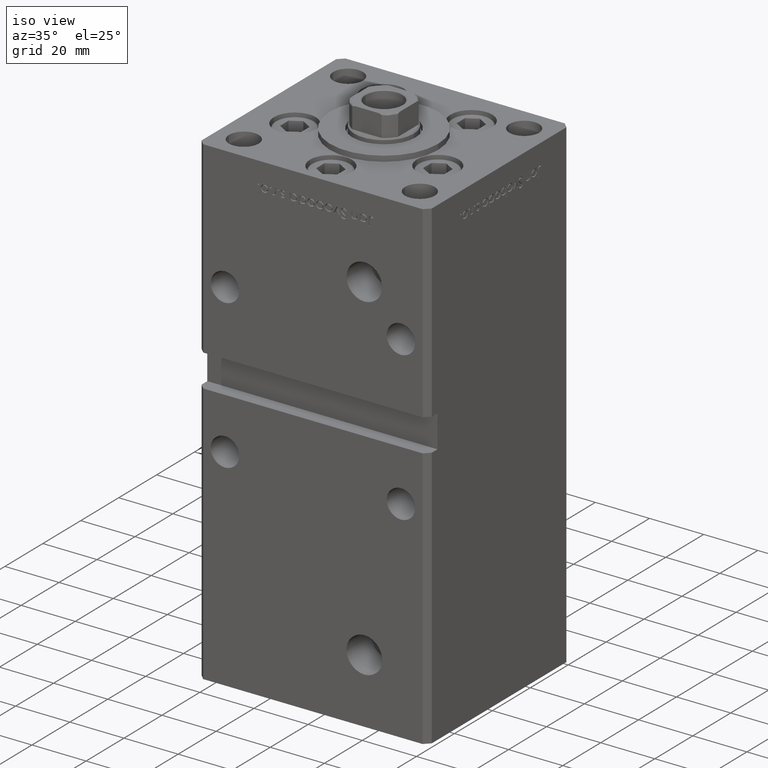
[diagram: clean part render]
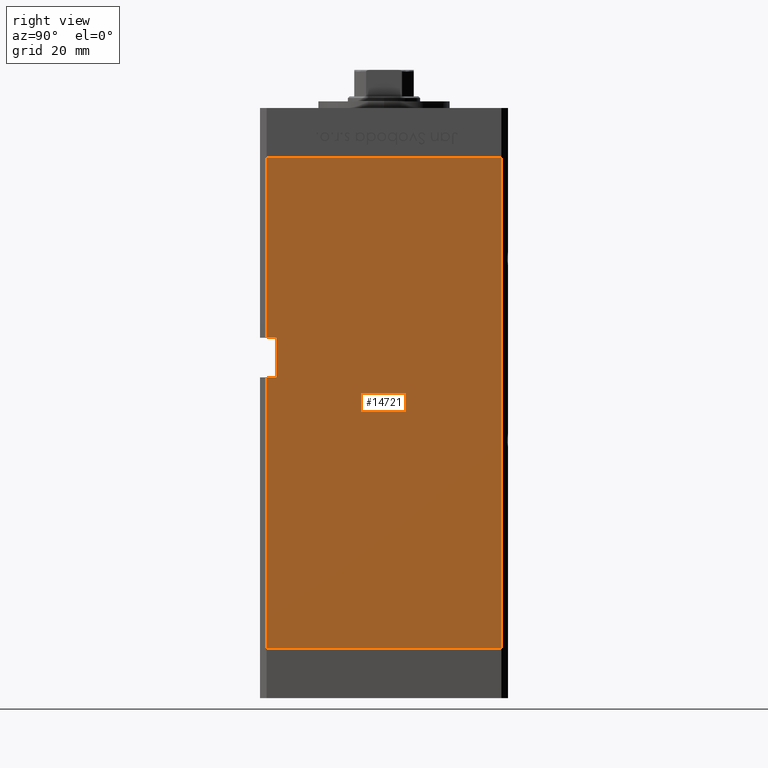
[diagram: tour spotlight — one face highlighted and labeled with its STEP entity id]
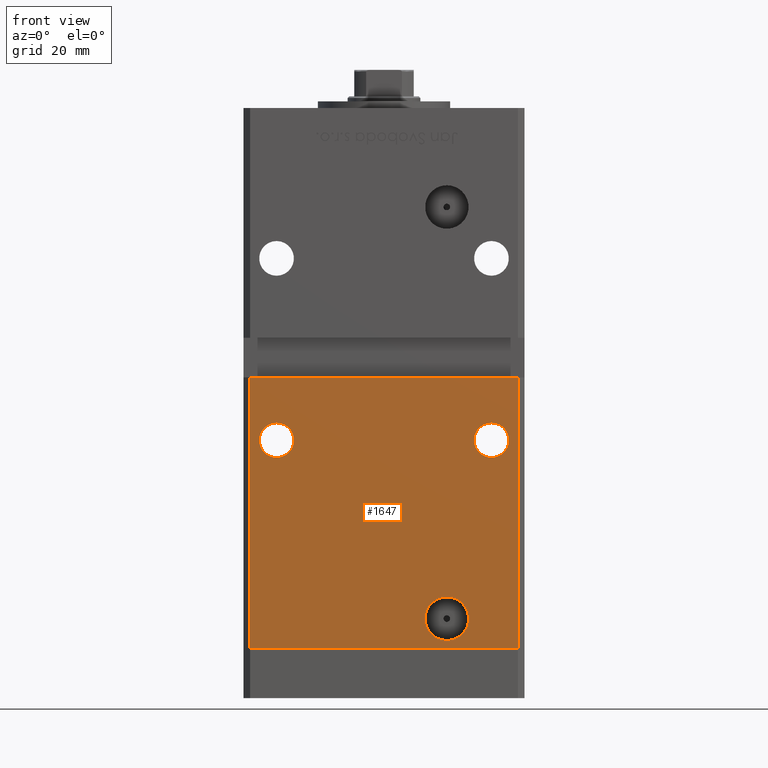
[diagram: tour spotlight — one face highlighted and labeled with its STEP entity id]
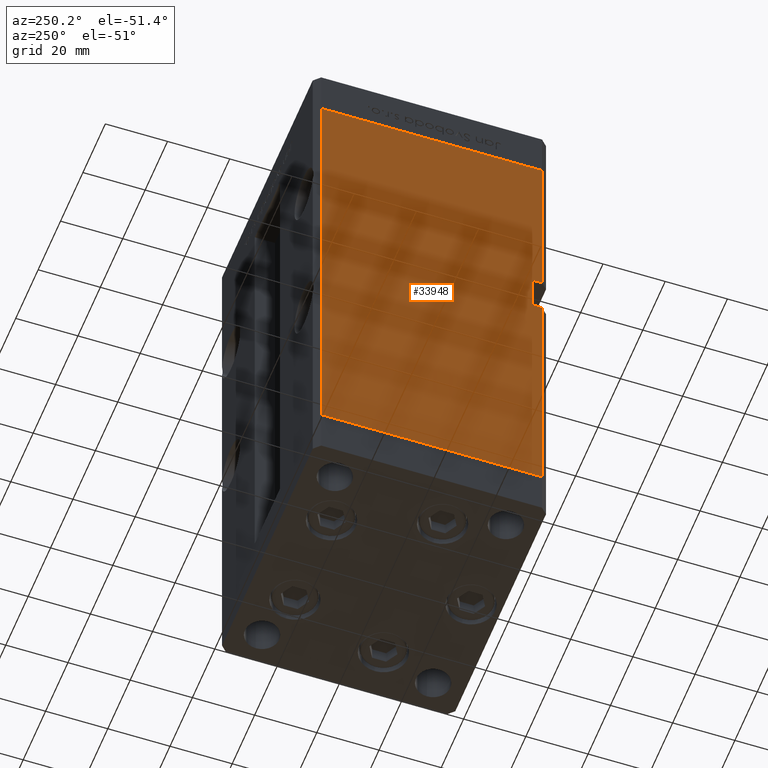
[diagram: tour spotlight — one face highlighted and labeled with its STEP entity id]
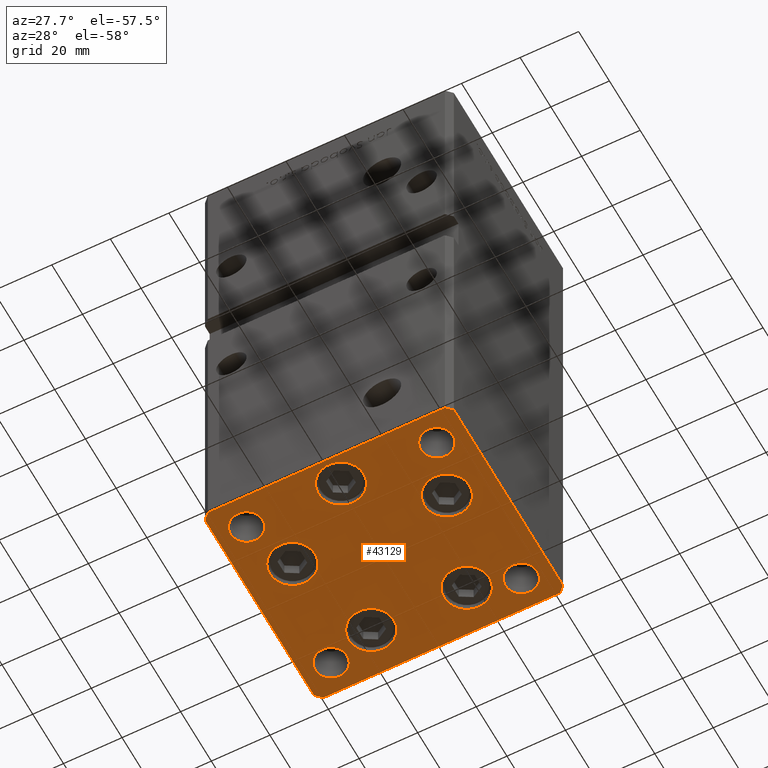
[diagram: tour spotlight — one face highlighted and labeled with its STEP entity id]
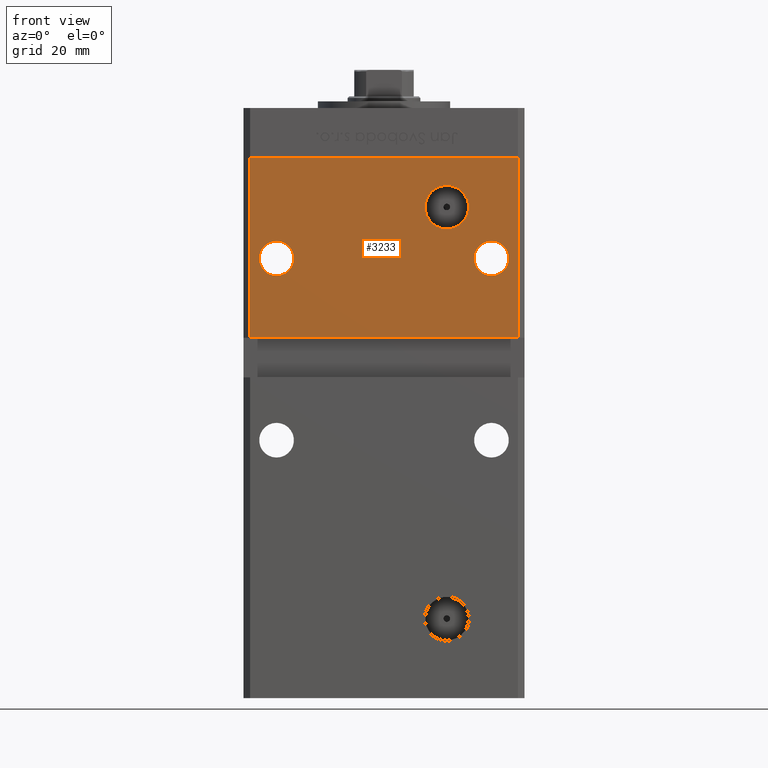
[diagram: tour spotlight — one face highlighted and labeled with its STEP entity id]
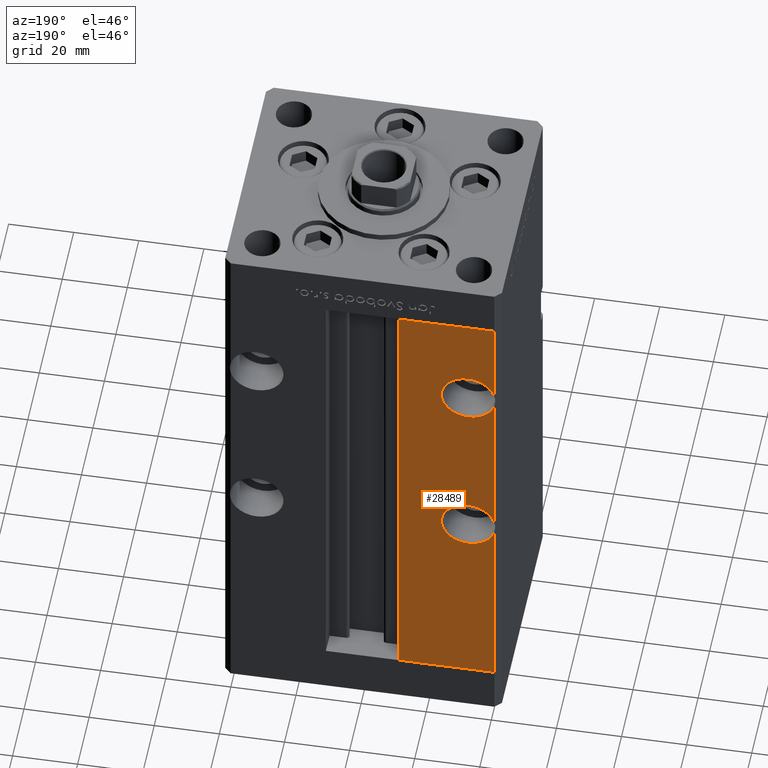
[diagram: tour spotlight — one face highlighted and labeled with its STEP entity id]
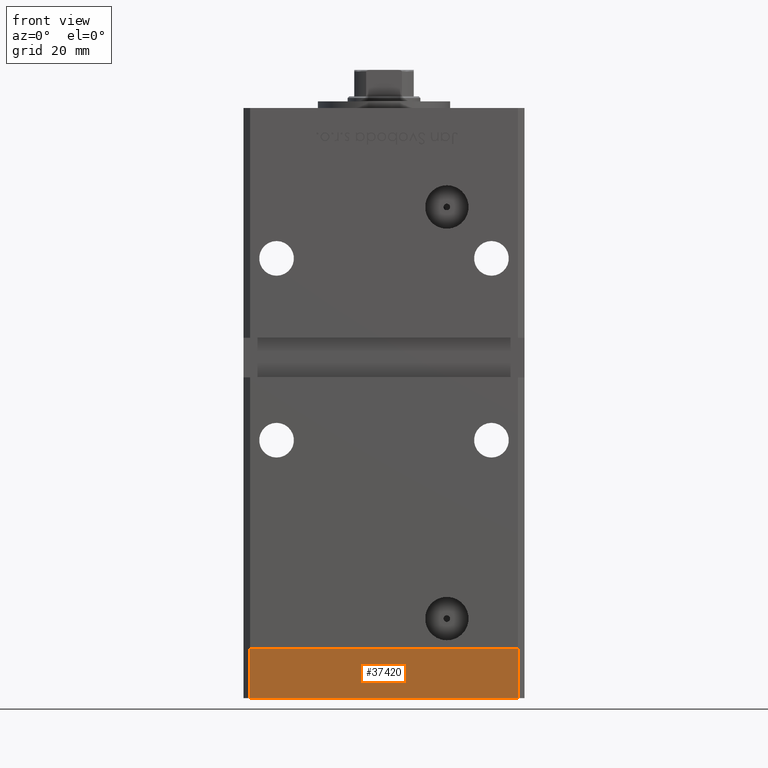
[diagram: tour spotlight — one face highlighted and labeled with its STEP entity id]
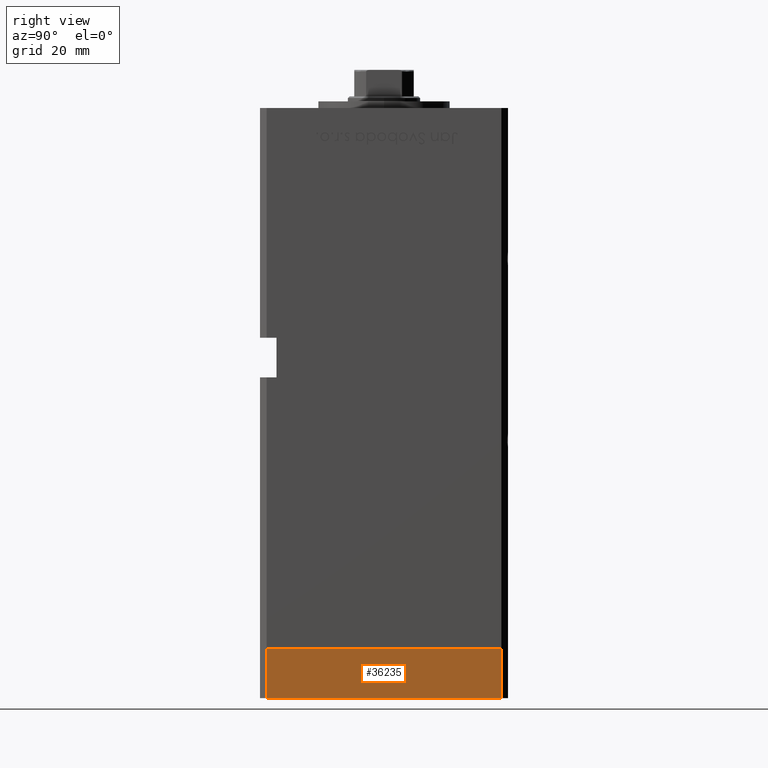
[diagram: tour spotlight — one face highlighted and labeled with its STEP entity id]
A machine part: a face-by-face anatomy tour. The part has 1214 B-rep faces; the first image is the clean iso view, then the 8 largest visible faces are spotlighted one at a time (largest first), each with its STEP entity span.

Face 1 — right view, entity #14721. In plain terms, the highlighted planar face has unit normal (1, -0, 0).
Definition (entity closure, byte-faithful):
#1280 = VERTEX_POINT ( 'NONE', #37718 ) ;
#1348 = DIRECTION ( 'NONE',  ( -0.000000000000000000, -0.000000000000000000, -1.000000000000000000 ) ) ;
#2892 = CARTESIAN_POINT ( 'NONE',  ( 42.49999999999998579, -32.50000000000000711, 94.00000000000000000 ) ) ;
#3232 = EDGE_CURVE ( 'NONE', #48209, #51271, #10646, .T. ) ;
#4245 = LINE ( 'NONE', #37318, #44677 ) ;
#5411 = ORIENTED_EDGE ( 'NONE', *, *, #3232, .F. ) ;
#5558 = LINE ( 'NONE', #19527, #27325 ) ;
#5930 = CARTESIAN_POINT ( 'NONE',  ( 42.50000000000001421, 35.50000000000000711, 148.5000000000000000 ) ) ;
#5945 = AXIS2_PLACEMENT_3D ( 'NONE', #15860, #19628, #48405 ) ;
#7531 = FACE_OUTER_BOUND ( 'NONE', #15949, .T. ) ;
#7701 = CARTESIAN_POINT ( 'NONE',  ( 42.49999999999998579, -35.50000000000000711, 0.000000000000000000 ) ) ;
#9423 = ORIENTED_EDGE ( 'NONE', *, *, #32574, .F. ) ;
#10646 = LINE ( 'NONE', #26787, #14216 ) ;
#10648 = DIRECTION ( 'NONE',  ( -0.000000000000000000, -1.000000000000000000, -0.000000000000000000 ) ) ;
#12651 = DIRECTION ( 'NONE',  ( -0.000000000000000000, -0.000000000000000000, -1.000000000000000000 ) ) ;
#12858 = VECTOR ( 'NONE', #31588, 1000.000000000000000 ) ;
#13740 = VECTOR ( 'NONE', #1348, 1000.000000000000000 ) ;
#14083 = DIRECTION ( 'NONE',  ( -3.909236002201255146E-16, -1.000000000000000000, 0.000000000000000000 ) ) ;
#14216 = VECTOR ( 'NONE', #46961, 1000.000000000000000 ) ;
#14721 = ADVANCED_FACE ( 'NONE', ( #7531 ), #24193, .T. ) ;
#15155 = EDGE_CURVE ( 'NONE', #52258, #30054, #39748, .T. ) ;
#15654 = CARTESIAN_POINT ( 'NONE',  ( 42.50000000000001421, 35.50000000000000711, 148.5000000000000000 ) ) ;
#15860 = CARTESIAN_POINT ( 'NONE',  ( 42.50000000000001421, 35.50000000000000711, 148.5000000000000000 ) ) ;
#15949 = EDGE_LOOP ( 'NONE', ( #50272, #24606, #5411, #9423, #35297, #31330, #35185, #32004 ) ) ;
#18477 = EDGE_CURVE ( 'NONE', #52258, #23859, #4245, .T. ) ;
#19278 = CARTESIAN_POINT ( 'NONE',  ( 42.49999999999998579, -32.50000000000000711, 94.00000000000000000 ) ) ;
#19527 = CARTESIAN_POINT ( 'NONE',  ( 42.49999999999998579, -32.50000000000000711, 94.00000000000000000 ) ) ;
#19628 = DIRECTION ( 'NONE',  ( 1.000000000000000000, -3.909236002201255146E-16, 0.000000000000000000 ) ) ;
#20540 = VECTOR ( 'NONE', #44038, 1000.000000000000000 ) ;
#20885 = VERTEX_POINT ( 'NONE', #15654 ) ;
#21559 = CARTESIAN_POINT ( 'NONE',  ( 42.49999999999998579, -35.50000000000000711, 82.00000000000000000 ) ) ;
#21877 = CARTESIAN_POINT ( 'NONE',  ( 42.50000000000001421, 35.50000000000000711, 148.5000000000000000 ) ) ;
#23859 = VERTEX_POINT ( 'NONE', #21559 ) ;
#24193 = PLANE ( 'NONE',  #5945 ) ;
#24606 = ORIENTED_EDGE ( 'NONE', *, *, #32036, .T. ) ;
#25575 = EDGE_CURVE ( 'NONE', #43365, #1280, #38450, .T. ) ;
#26787 = CARTESIAN_POINT ( 'NONE',  ( 42.50000000000001421, 35.50000000000000711, 0.000000000000000000 ) ) ;
#27325 = VECTOR ( 'NONE', #10648, 1000.000000000000000 ) ;
#27780 = EDGE_CURVE ( 'NONE', #30054, #1280, #5558, .T. ) ;
#28228 = CARTESIAN_POINT ( 'NONE',  ( 42.49999999999998579, -35.50000000000000711, 148.5000000000000000 ) ) ;
#30054 = VERTEX_POINT ( 'NONE', #19278 ) ;
#31330 = ORIENTED_EDGE ( 'NONE', *, *, #25575, .T. ) ;
#31588 = DIRECTION ( 'NONE',  ( -0.000000000000000000, -0.000000000000000000, -1.000000000000000000 ) ) ;
#31647 = CARTESIAN_POINT ( 'NONE',  ( 42.50000000000001421, 35.50000000000000711, 0.000000000000000000 ) ) ;
#32004 = ORIENTED_EDGE ( 'NONE', *, *, #15155, .F. ) ;
#32036 = EDGE_CURVE ( 'NONE', #23859, #51271, #48790, .T. ) ;
#32574 = EDGE_CURVE ( 'NONE', #20885, #48209, #43031, .T. ) ;
#35185 = ORIENTED_EDGE ( 'NONE', *, *, #27780, .F. ) ;
#35297 = ORIENTED_EDGE ( 'NONE', *, *, #42936, .T. ) ;
#35388 = VECTOR ( 'NONE', #14083, 1000.000000000000000 ) ;
#37318 = CARTESIAN_POINT ( 'NONE',  ( 42.49999999999998579, -32.50000000000000711, 82.00000000000000000 ) ) ;
#37718 = CARTESIAN_POINT ( 'NONE',  ( 42.49999999999998579, -35.50000000000000711, 94.00000000000000000 ) ) ;
#38450 = LINE ( 'NONE', #50551, #46513 ) ;
#39748 = LINE ( 'NONE', #2892, #20540 ) ;
#40731 = CARTESIAN_POINT ( 'NONE',  ( 42.49999999999998579, -35.50000000000000711, 148.5000000000000000 ) ) ;
#41835 = CARTESIAN_POINT ( 'NONE',  ( 42.49999999999998579, -32.50000000000000000, 82.00000000000000000 ) ) ;
#42936 = EDGE_CURVE ( 'NONE', #20885, #43365, #51453, .T. ) ;
#43031 = LINE ( 'NONE', #5930, #13740 ) ;
#43365 = VERTEX_POINT ( 'NONE', #28228 ) ;
#44038 = DIRECTION ( 'NONE',  ( -0.000000000000000000, -0.000000000000000000, 1.000000000000000000 ) ) ;
#44677 = VECTOR ( 'NONE', #52937, 1000.000000000000000 ) ;
#46513 = VECTOR ( 'NONE', #12651, 1000.000000000000000 ) ;
#46961 = DIRECTION ( 'NONE',  ( -3.909236002201255146E-16, -1.000000000000000000, 0.000000000000000000 ) ) ;
#48209 = VERTEX_POINT ( 'NONE', #31647 ) ;
#48405 = DIRECTION ( 'NONE',  ( 3.909236002201255146E-16, 1.000000000000000000, 0.000000000000000000 ) ) ;
#48790 = LINE ( 'NONE', #40731, #12858 ) ;
#50272 = ORIENTED_EDGE ( 'NONE', *, *, #18477, .T. ) ;
#50551 = CARTESIAN_POINT ( 'NONE',  ( 42.49999999999998579, -35.50000000000000711, 148.5000000000000000 ) ) ;
#51271 = VERTEX_POINT ( 'NONE', #7701 ) ;
#51453 = LINE ( 'NONE', #21877, #35388 ) ;
#52258 = VERTEX_POINT ( 'NONE', #41835 ) ;
#52937 = DIRECTION ( 'NONE',  ( -0.000000000000000000, -1.000000000000000000, -0.000000000000000000 ) ) ;

Face 2 — front view, entity #1647. In plain terms, the highlighted planar face has unit normal (0, 1, 0).
Definition (entity closure, byte-faithful):
#379 = ORIENTED_EDGE ( 'NONE', *, *, #6086, .T. ) ;
#1647 = ADVANCED_FACE ( 'NONE', ( #33347, #45979, #13179, #49759 ), #29566, .F. ) ;
#2724 = CARTESIAN_POINT ( 'NONE',  ( 32.50000000000000000, -37.50000000000000711, 68.24999999999998579 ) ) ;
#3983 = EDGE_LOOP ( 'NONE', ( #46081, #17800 ) ) ;
#4381 = VERTEX_POINT ( 'NONE', #36143 ) ;
#4881 = EDGE_CURVE ( 'NONE', #4381, #12101, #44306, .T. ) ;
#5681 = CIRCLE ( 'NONE', #7427, 5.249999999999991118 ) ;
#6055 = LINE ( 'NONE', #30779, #21900 ) ;
#6086 = EDGE_CURVE ( 'NONE', #38428, #11313, #5681, .T. ) ;
#6555 = EDGE_LOOP ( 'NONE', ( #49127, #21755 ) ) ;
#6771 = DIRECTION ( 'NONE',  ( 0.000000000000000000, 1.000000000000000000, 0.000000000000000000 ) ) ;
#7384 = AXIS2_PLACEMENT_3D ( 'NONE', #38576, #50413, #13570 ) ;
#7427 = AXIS2_PLACEMENT_3D ( 'NONE', #43600, #6771, #23174 ) ;
#9988 = EDGE_CURVE ( 'NONE', #12101, #4381, #30703, .T. ) ;
#10192 = DIRECTION ( 'NONE',  ( 0.000000000000000000, -0.000000000000000000, 1.000000000000000000 ) ) ;
#10674 = DIRECTION ( 'NONE',  ( 0.000000000000000000, 1.000000000000000000, 0.000000000000000000 ) ) ;
#11313 = VERTEX_POINT ( 'NONE', #2724 ) ;
#12101 = VERTEX_POINT ( 'NONE', #42816 ) ;
#12914 = CARTESIAN_POINT ( 'NONE',  ( -40.49999999999998579, -37.50000000000000711, 148.5000000000000000 ) ) ;
#12934 = VECTOR ( 'NONE', #46149, 1000.000000000000000 ) ;
#13022 = EDGE_CURVE ( 'NONE', #18260, #19180, #22985, .T. ) ;
#13179 = FACE_BOUND ( 'NONE', #3983, .T. ) ;
#13570 = DIRECTION ( 'NONE',  ( 0.000000000000000000, 0.000000000000000000, -1.000000000000000000 ) ) ;
#13866 = CARTESIAN_POINT ( 'NONE',  ( 32.50000000000000000, -37.50000000000000711, 57.75000000000000711 ) ) ;
#14045 = CARTESIAN_POINT ( 'NONE',  ( -32.50000000000000000, -37.50000000000000711, 63.00000000000000000 ) ) ;
#14785 = AXIS2_PLACEMENT_3D ( 'NONE', #52361, #10674, #52631 ) ;
#14856 = AXIS2_PLACEMENT_3D ( 'NONE', #23909, #24432, #28469 ) ;
#17304 = CARTESIAN_POINT ( 'NONE',  ( -40.49999999999998579, -37.50000000000000711, 82.00000000000000000 ) ) ;
#17648 = CARTESIAN_POINT ( 'NONE',  ( -42.49999999999998579, -37.50000000000000711, 82.00000000000000000 ) ) ;
#17657 = ORIENTED_EDGE ( 'NONE', *, *, #34029, .F. ) ;
#17800 = ORIENTED_EDGE ( 'NONE', *, *, #9988, .F. ) ;
#18180 = LINE ( 'NONE', #17648, #12934 ) ;
#18260 = VERTEX_POINT ( 'NONE', #35195 ) ;
#19180 = VERTEX_POINT ( 'NONE', #35604 ) ;
#19393 = EDGE_CURVE ( 'NONE', #51983, #23736, #53207, .T. ) ;
#21110 = ORIENTED_EDGE ( 'NONE', *, *, #13022, .F. ) ;
#21395 = DIRECTION ( 'NONE',  ( -0.000000000000000000, -0.000000000000000000, -1.000000000000000000 ) ) ;
#21755 = ORIENTED_EDGE ( 'NONE', *, *, #19393, .T. ) ;
#21900 = VECTOR ( 'NONE', #21395, 1000.000000000000000 ) ;
#22184 = CARTESIAN_POINT ( 'NONE',  ( 40.49999999999998579, -37.50000000000000711, 148.5000000000000000 ) ) ;
#22371 = DIRECTION ( 'NONE',  ( 0.000000000000000000, 0.000000000000000000, 1.000000000000000000 ) ) ;
#22851 = AXIS2_PLACEMENT_3D ( 'NONE', #12914, #33873, #10192 ) ;
#22985 = LINE ( 'NONE', #22184, #32518 ) ;
#23174 = DIRECTION ( 'NONE',  ( 0.000000000000000000, 0.000000000000000000, 1.000000000000000000 ) ) ;
#23230 = EDGE_LOOP ( 'NONE', ( #26614, #379 ) ) ;
#23736 = VERTEX_POINT ( 'NONE', #40418 ) ;
#23909 = CARTESIAN_POINT ( 'NONE',  ( 32.50000000000000000, -37.50000000000000711, 63.00000000000000000 ) ) ;
#24287 = CIRCLE ( 'NONE', #14856, 5.249999999999991118 ) ;
#24305 = EDGE_CURVE ( 'NONE', #44116, #19180, #46357, .T. ) ;
#24432 = DIRECTION ( 'NONE',  ( 0.000000000000000000, 1.000000000000000000, 0.000000000000000000 ) ) ;
#25139 = CARTESIAN_POINT ( 'NONE',  ( -40.49999999999998579, -37.50000000000000711, 0.000000000000000000 ) ) ;
#25610 = DIRECTION ( 'NONE',  ( 0.000000000000000000, 1.000000000000000000, 0.000000000000000000 ) ) ;
#26183 = DIRECTION ( 'NONE',  ( 1.000000000000000000, 0.000000000000000000, 0.000000000000000000 ) ) ;
#26614 = ORIENTED_EDGE ( 'NONE', *, *, #45915, .T. ) ;
#27375 = EDGE_LOOP ( 'NONE', ( #21110, #17657, #31002, #33834 ) ) ;
#28469 = DIRECTION ( 'NONE',  ( 0.000000000000000000, 0.000000000000000000, 1.000000000000000000 ) ) ;
#29566 = PLANE ( 'NONE',  #22851 ) ;
#30703 = CIRCLE ( 'NONE', #50486, 6.579999999999998295 ) ;
#30779 = CARTESIAN_POINT ( 'NONE',  ( -40.49999999999998579, -37.50000000000000711, 148.5000000000000000 ) ) ;
#31002 = ORIENTED_EDGE ( 'NONE', *, *, #52186, .T. ) ;
#31354 = DIRECTION ( 'NONE',  ( 0.000000000000000000, -1.000000000000000000, 0.000000000000000000 ) ) ;
#31941 = CIRCLE ( 'NONE', #14785, 5.249999999999991118 ) ;
#32518 = VECTOR ( 'NONE', #42363, 1000.000000000000000 ) ;
#33347 = FACE_BOUND ( 'NONE', #6555, .T. ) ;
#33834 = ORIENTED_EDGE ( 'NONE', *, *, #24305, .T. ) ;
#33873 = DIRECTION ( 'NONE',  ( 0.000000000000000000, 1.000000000000000000, 0.000000000000000000 ) ) ;
#34029 = EDGE_CURVE ( 'NONE', #49452, #18260, #18180, .T. ) ;
#34456 = CARTESIAN_POINT ( 'NONE',  ( -40.49999999999998579, -37.50000000000000711, 0.000000000000000000 ) ) ;
#34857 = CARTESIAN_POINT ( 'NONE',  ( 18.99999999999998934, -37.50000000000000711, 9.000000000000007105 ) ) ;
#35195 = CARTESIAN_POINT ( 'NONE',  ( 40.49999999999998579, -37.50000000000000711, 82.00000000000000000 ) ) ;
#35604 = CARTESIAN_POINT ( 'NONE',  ( 40.49999999999998579, -37.50000000000000711, 0.000000000000000000 ) ) ;
#35667 = DIRECTION ( 'NONE',  ( 0.000000000000000000, 0.000000000000000000, -1.000000000000000000 ) ) ;
#36143 = CARTESIAN_POINT ( 'NONE',  ( 18.99999999999998934, -37.50000000000000711, 2.420000000000009699 ) ) ;
#36894 = AXIS2_PLACEMENT_3D ( 'NONE', #14045, #25610, #22371 ) ;
#37046 = VECTOR ( 'NONE', #26183, 1000.000000000000000 ) ;
#38222 = EDGE_CURVE ( 'NONE', #23736, #51983, #31941, .T. ) ;
#38428 = VERTEX_POINT ( 'NONE', #13866 ) ;
#38576 = CARTESIAN_POINT ( 'NONE',  ( 18.99999999999998934, -37.50000000000000711, 9.000000000000007105 ) ) ;
#40257 = CARTESIAN_POINT ( 'NONE',  ( -32.50000000000000000, -37.50000000000000711, 57.75000000000000000 ) ) ;
#40418 = CARTESIAN_POINT ( 'NONE',  ( -32.50000000000000000, -37.50000000000000711, 68.24999999999998579 ) ) ;
#42363 = DIRECTION ( 'NONE',  ( -0.000000000000000000, -0.000000000000000000, -1.000000000000000000 ) ) ;
#42816 = CARTESIAN_POINT ( 'NONE',  ( 18.99999999999998934, -37.50000000000000711, 15.58000000000000718 ) ) ;
#43600 = CARTESIAN_POINT ( 'NONE',  ( 32.50000000000000000, -37.50000000000000711, 63.00000000000000000 ) ) ;
#44116 = VERTEX_POINT ( 'NONE', #34456 ) ;
#44306 = CIRCLE ( 'NONE', #7384, 6.579999999999998295 ) ;
#45915 = EDGE_CURVE ( 'NONE', #11313, #38428, #24287, .T. ) ;
#45979 = FACE_BOUND ( 'NONE', #23230, .T. ) ;
#46081 = ORIENTED_EDGE ( 'NONE', *, *, #4881, .F. ) ;
#46149 = DIRECTION ( 'NONE',  ( 1.000000000000000000, 0.000000000000000000, 0.000000000000000000 ) ) ;
#46357 = LINE ( 'NONE', #25139, #37046 ) ;
#49127 = ORIENTED_EDGE ( 'NONE', *, *, #38222, .T. ) ;
#49452 = VERTEX_POINT ( 'NONE', #17304 ) ;
#49759 = FACE_OUTER_BOUND ( 'NONE', #27375, .T. ) ;
#50413 = DIRECTION ( 'NONE',  ( 0.000000000000000000, -1.000000000000000000, 0.000000000000000000 ) ) ;
#50486 = AXIS2_PLACEMENT_3D ( 'NONE', #34857, #31354, #35667 ) ;
#51983 = VERTEX_POINT ( 'NONE', #40257 ) ;
#52186 = EDGE_CURVE ( 'NONE', #49452, #44116, #6055, .T. ) ;
#52361 = CARTESIAN_POINT ( 'NONE',  ( -32.50000000000000000, -37.50000000000000711, 63.00000000000000000 ) ) ;
#52631 = DIRECTION ( 'NONE',  ( 0.000000000000000000, 0.000000000000000000, 1.000000000000000000 ) ) ;
#53207 = CIRCLE ( 'NONE', #36894, 5.249999999999991118 ) ;

Face 3 — auxiliary view, entity #33948. In plain terms, the highlighted planar face has unit normal (1, 0, 0).
Definition (entity closure, byte-faithful):
#646 = VERTEX_POINT ( 'NONE', #30682 ) ;
#971 = VECTOR ( 'NONE', #20105, 1000.000000000000000 ) ;
#2131 = EDGE_CURVE ( 'NONE', #39707, #41469, #23610, .T. ) ;
#2897 = FACE_OUTER_BOUND ( 'NONE', #52804, .T. ) ;
#3165 = DIRECTION ( 'NONE',  ( 1.000000000000000000, 3.909236002201255146E-16, -0.000000000000000000 ) ) ;
#3432 = CARTESIAN_POINT ( 'NONE',  ( -42.49999999999998579, -35.50000000000000711, 148.5000000000000000 ) ) ;
#3703 = LINE ( 'NONE', #48621, #971 ) ;
#4660 = DIRECTION ( 'NONE',  ( -0.000000000000000000, -1.000000000000000000, -0.000000000000000000 ) ) ;
#5117 = EDGE_CURVE ( 'NONE', #646, #12768, #42010, .T. ) ;
#6242 = LINE ( 'NONE', #35002, #38117 ) ;
#9562 = VERTEX_POINT ( 'NONE', #48161 ) ;
#10161 = CARTESIAN_POINT ( 'NONE',  ( -42.49999999999998579, -35.49999999999996447, 82.00000000000000000 ) ) ;
#12768 = VERTEX_POINT ( 'NONE', #18742 ) ;
#12877 = CARTESIAN_POINT ( 'NONE',  ( -42.50000000000001421, 35.50000000000000711, 148.5000000000000000 ) ) ;
#13357 = ORIENTED_EDGE ( 'NONE', *, *, #5117, .F. ) ;
#14604 = EDGE_CURVE ( 'NONE', #22203, #9562, #37418, .T. ) ;
#14673 = ORIENTED_EDGE ( 'NONE', *, *, #41442, .F. ) ;
#14792 = CARTESIAN_POINT ( 'NONE',  ( -42.49999999999998579, -32.50000000000000711, 82.00000000000000000 ) ) ;
#15548 = PLANE ( 'NONE',  #34349 ) ;
#15790 = VERTEX_POINT ( 'NONE', #49626 ) ;
#16209 = ORIENTED_EDGE ( 'NONE', *, *, #51705, .F. ) ;
#16682 = LINE ( 'NONE', #33078, #23070 ) ;
#18576 = ORIENTED_EDGE ( 'NONE', *, *, #28422, .T. ) ;
#18742 = CARTESIAN_POINT ( 'NONE',  ( -42.49999999999998579, -32.50000000000000711, 82.00000000000000000 ) ) ;
#20105 = DIRECTION ( 'NONE',  ( 3.909236002201255146E-16, -1.000000000000000000, 0.000000000000000000 ) ) ;
#22203 = VERTEX_POINT ( 'NONE', #12877 ) ;
#22600 = DIRECTION ( 'NONE',  ( -0.000000000000000000, -0.000000000000000000, -1.000000000000000000 ) ) ;
#23070 = VECTOR ( 'NONE', #33872, 1000.000000000000000 ) ;
#23610 = LINE ( 'NONE', #3432, #39939 ) ;
#24130 = CARTESIAN_POINT ( 'NONE',  ( -42.50000000000001421, 35.50000000000000711, 148.5000000000000000 ) ) ;
#24215 = VECTOR ( 'NONE', #35690, 1000.000000000000000 ) ;
#26835 = VERTEX_POINT ( 'NONE', #45636 ) ;
#28422 = EDGE_CURVE ( 'NONE', #9562, #41469, #16682, .T. ) ;
#30404 = ORIENTED_EDGE ( 'NONE', *, *, #47617, .T. ) ;
#30682 = CARTESIAN_POINT ( 'NONE',  ( -42.49999999999998579, -32.50000000000000711, 94.00000000000000000 ) ) ;
#32022 = ORIENTED_EDGE ( 'NONE', *, *, #14604, .T. ) ;
#32860 = ORIENTED_EDGE ( 'NONE', *, *, #38217, .F. ) ;
#33078 = CARTESIAN_POINT ( 'NONE',  ( -42.50000000000001421, 35.50000000000000711, 0.000000000000000000 ) ) ;
#33872 = DIRECTION ( 'NONE',  ( 3.909236002201255146E-16, -1.000000000000000000, 0.000000000000000000 ) ) ;
#33948 = ADVANCED_FACE ( 'NONE', ( #2897 ), #15548, .F. ) ;
#34349 = AXIS2_PLACEMENT_3D ( 'NONE', #24130, #3165, #44044 ) ;
#34478 = DIRECTION ( 'NONE',  ( -0.000000000000000000, -1.000000000000000000, -0.000000000000000000 ) ) ;
#35002 = CARTESIAN_POINT ( 'NONE',  ( -42.49999999999998579, -32.50000000000000711, 94.00000000000000000 ) ) ;
#35690 = DIRECTION ( 'NONE',  ( -0.000000000000000000, -0.000000000000000000, -1.000000000000000000 ) ) ;
#36517 = CARTESIAN_POINT ( 'NONE',  ( -42.49999999999998579, -35.50000000000000711, 0.000000000000000000 ) ) ;
#37418 = LINE ( 'NONE', #43033, #52339 ) ;
#37436 = VECTOR ( 'NONE', #37990, 1000.000000000000000 ) ;
#37990 = DIRECTION ( 'NONE',  ( -5.782411586589358625E-16, 0.000000000000000000, -1.000000000000000000 ) ) ;
#38117 = VECTOR ( 'NONE', #34478, 1000.000000000000000 ) ;
#38217 = EDGE_CURVE ( 'NONE', #26835, #15790, #40522, .T. ) ;
#39481 = DIRECTION ( 'NONE',  ( -0.000000000000000000, -0.000000000000000000, -1.000000000000000000 ) ) ;
#39707 = VERTEX_POINT ( 'NONE', #10161 ) ;
#39939 = VECTOR ( 'NONE', #39481, 1000.000000000000000 ) ;
#40522 = LINE ( 'NONE', #51828, #24215 ) ;
#41442 = EDGE_CURVE ( 'NONE', #22203, #26835, #3703, .T. ) ;
#41469 = VERTEX_POINT ( 'NONE', #36517 ) ;
#42010 = LINE ( 'NONE', #42278, #37436 ) ;
#42278 = CARTESIAN_POINT ( 'NONE',  ( -42.49999999999998579, -32.50000000000000711, 94.00000000000000000 ) ) ;
#43033 = CARTESIAN_POINT ( 'NONE',  ( -42.50000000000001421, 35.50000000000000711, 148.5000000000000000 ) ) ;
#43275 = LINE ( 'NONE', #14792, #47659 ) ;
#44044 = DIRECTION ( 'NONE',  ( -3.909236002201255146E-16, 1.000000000000000000, 0.000000000000000000 ) ) ;
#45636 = CARTESIAN_POINT ( 'NONE',  ( -42.49999999999998579, -35.50000000000000711, 148.5000000000000000 ) ) ;
#47608 = ORIENTED_EDGE ( 'NONE', *, *, #2131, .F. ) ;
#47617 = EDGE_CURVE ( 'NONE', #646, #15790, #6242, .T. ) ;
#47659 = VECTOR ( 'NONE', #4660, 1000.000000000000000 ) ;
#48161 = CARTESIAN_POINT ( 'NONE',  ( -42.50000000000001421, 35.50000000000000711, 0.000000000000000000 ) ) ;
#48621 = CARTESIAN_POINT ( 'NONE',  ( -42.50000000000001421, 35.50000000000000711, 148.5000000000000000 ) ) ;
#49626 = CARTESIAN_POINT ( 'NONE',  ( -42.49999999999998579, -35.50000000000001421, 94.00000000000000000 ) ) ;
#51705 = EDGE_CURVE ( 'NONE', #12768, #39707, #43275, .T. ) ;
#51828 = CARTESIAN_POINT ( 'NONE',  ( -42.49999999999998579, -35.50000000000000711, 148.5000000000000000 ) ) ;
#52339 = VECTOR ( 'NONE', #22600, 1000.000000000000000 ) ;
#52804 = EDGE_LOOP ( 'NONE', ( #47608, #16209, #13357, #30404, #32860, #14673, #32022, #18576 ) ) ;

Face 4 — auxiliary view, entity #43129. In plain terms, the highlighted planar face has unit normal (0, 0, -1).
Definition (entity closure, byte-faithful):
#33 = DIRECTION ( 'NONE',  ( 1.000000000000000000, 0.000000000000000000, 0.000000000000000000 ) ) ;
#203 = CIRCLE ( 'NONE', #30263, 7.750000000000000000 ) ;
#419 = ORIENTED_EDGE ( 'NONE', *, *, #44051, .T. ) ;
#486 = EDGE_CURVE ( 'NONE', #15876, #9075, #15687, .T. ) ;
#1345 = DIRECTION ( 'NONE',  ( 0.000000000000000000, -0.000000000000000000, -1.000000000000000000 ) ) ;
#1503 = VERTEX_POINT ( 'NONE', #12375 ) ;
#1576 = VERTEX_POINT ( 'NONE', #5108 ) ;
#1685 = DIRECTION ( 'NONE',  ( -0.000000000000000000, 0.000000000000000000, 1.000000000000000000 ) ) ;
#1825 = CIRCLE ( 'NONE', #32784, 5.499999999999998224 ) ;
#1986 = CARTESIAN_POINT ( 'NONE',  ( 3.429011037612589276E-15, -28.00000000000000000, 0.000000000000000000 ) ) ;
#2009 = EDGE_CURVE ( 'NONE', #20438, #41221, #9021, .T. ) ;
#2483 = CARTESIAN_POINT ( 'NONE',  ( 27.00000000000000355, -27.49999999999999645, 0.000000000000000000 ) ) ;
#2773 = CARTESIAN_POINT ( 'NONE',  ( 42.49999999999992895, 35.50000000000000000, 0.000000000000000000 ) ) ;
#2779 = CARTESIAN_POINT ( 'NONE',  ( -16.32291334290543006, 22.74999999999999645, 0.000000000000000000 ) ) ;
#3030 = FACE_BOUND ( 'NONE', #16194, .T. ) ;
#3153 = VECTOR ( 'NONE', #6148, 1000.000000000000114 ) ;
#3289 = FACE_BOUND ( 'NONE', #19705, .T. ) ;
#3335 = VECTOR ( 'NONE', #27867, 1000.000000000000000 ) ;
#3354 = ORIENTED_EDGE ( 'NONE', *, *, #32079, .T. ) ;
#3958 = CIRCLE ( 'NONE', #10827, 7.750000000000000000 ) ;
#4411 = CARTESIAN_POINT ( 'NONE',  ( 40.50000000000000000, -37.50000000000000711, 0.000000000000000000 ) ) ;
#4917 = CARTESIAN_POINT ( 'NONE',  ( -16.32291334290543006, 22.74999999999999645, 0.000000000000000000 ) ) ;
#5108 = CARTESIAN_POINT ( 'NONE',  ( 38.00000000000000000, 27.49999999999999645, 0.000000000000000000 ) ) ;
#5182 = LINE ( 'NONE', #42019, #25830 ) ;
#5730 = EDGE_CURVE ( 'NONE', #37840, #7148, #3958, .T. ) ;
#5910 = EDGE_CURVE ( 'NONE', #31351, #42120, #40936, .T. ) ;
#6022 = DIRECTION ( 'NONE',  ( 1.000000000000000000, 0.000000000000000000, 0.000000000000000000 ) ) ;
#6128 = CARTESIAN_POINT ( 'NONE',  ( -24.07291334290543006, 22.74999999999999645, 0.000000000000000000 ) ) ;
#6148 = DIRECTION ( 'NONE',  ( 0.7071067811865474617, 0.7071067811865474617, 0.000000000000000000 ) ) ;
#6340 = CARTESIAN_POINT ( 'NONE',  ( 32.50000000000000000, 27.49999999999999645, 0.000000000000000000 ) ) ;
#6580 = EDGE_CURVE ( 'NONE', #20578, #15876, #24163, .T. ) ;
#6864 = LINE ( 'NONE', #27284, #14707 ) ;
#7022 = AXIS2_PLACEMENT_3D ( 'NONE', #6340, #18438, #39145 ) ;
#7148 = VERTEX_POINT ( 'NONE', #7246 ) ;
#7246 = CARTESIAN_POINT ( 'NONE',  ( 7.750000000000003553, -28.00000000000000000, 0.000000000000000000 ) ) ;
#7642 = AXIS2_PLACEMENT_3D ( 'NONE', #2779, #35327, #6022 ) ;
#7703 = LINE ( 'NONE', #44535, #3335 ) ;
#7870 = CARTESIAN_POINT ( 'NONE',  ( 34.14865316429776954, -9.333333333333328596, 0.000000000000000000 ) ) ;
#8033 = EDGE_CURVE ( 'NONE', #32132, #20578, #13959, .T. ) ;
#8159 = DIRECTION ( 'NONE',  ( 9.773090005503140331E-17, -1.000000000000000000, 0.000000000000000000 ) ) ;
#8263 = AXIS2_PLACEMENT_3D ( 'NONE', #26664, #51156, #43075 ) ;
#8544 = ORIENTED_EDGE ( 'NONE', *, *, #9622, .T. ) ;
#9021 = CIRCLE ( 'NONE', #37363, 7.750000000000000000 ) ;
#9075 = VERTEX_POINT ( 'NONE', #35662 ) ;
#9435 = CIRCLE ( 'NONE', #23188, 7.750000000000003553 ) ;
#9622 = EDGE_CURVE ( 'NONE', #31660, #1503, #22959, .T. ) ;
#9770 = VERTEX_POINT ( 'NONE', #47292 ) ;
#9785 = VERTEX_POINT ( 'NONE', #18262 ) ;
#10250 = DIRECTION ( 'NONE',  ( 1.000000000000000000, 0.000000000000000000, 0.000000000000000000 ) ) ;
#10475 = CARTESIAN_POINT ( 'NONE',  ( -7.749999999999996447, -28.00000000000000000, 0.000000000000000000 ) ) ;
#10827 = AXIS2_PLACEMENT_3D ( 'NONE', #1986, #18403, #34801 ) ;
#11222 = ORIENTED_EDGE ( 'NONE', *, *, #21937, .T. ) ;
#11856 = AXIS2_PLACEMENT_3D ( 'NONE', #41345, #20898, #20372 ) ;
#12375 = CARTESIAN_POINT ( 'NONE',  ( -38.00000000000000000, -27.49999999999999645, 0.000000000000000000 ) ) ;
#12870 = CARTESIAN_POINT ( 'NONE',  ( -40.49999999999999289, -37.50000000000002132, 0.000000000000000000 ) ) ;
#13688 = DIRECTION ( 'NONE',  ( 0.000000000000000000, -0.000000000000000000, -1.000000000000000000 ) ) ;
#13752 = ORIENTED_EDGE ( 'NONE', *, *, #32482, .F. ) ;
#13959 = LINE ( 'NONE', #51062, #3153 ) ;
#14707 = VECTOR ( 'NONE', #40732, 1000.000000000000000 ) ;
#15069 = DIRECTION ( 'NONE',  ( 1.000000000000000000, 0.000000000000000000, 0.000000000000000000 ) ) ;
#15101 = DIRECTION ( 'NONE',  ( 0.000000000000000000, -0.000000000000000000, -1.000000000000000000 ) ) ;
#15413 = DIRECTION ( 'NONE',  ( 1.000000000000000000, 0.000000000000000000, 0.000000000000000000 ) ) ;
#15687 = LINE ( 'NONE', #2773, #42581 ) ;
#15876 = VERTEX_POINT ( 'NONE', #25942 ) ;
#16001 = EDGE_LOOP ( 'NONE', ( #26580, #24659 ) ) ;
#16147 = DIRECTION ( 'NONE',  ( 1.000000000000000000, 0.000000000000000000, 0.000000000000000000 ) ) ;
#16185 = ORIENTED_EDGE ( 'NONE', *, *, #34568, .T. ) ;
#16192 = FACE_OUTER_BOUND ( 'NONE', #40673, .T. ) ;
#16194 = EDGE_LOOP ( 'NONE', ( #24460, #19578 ) ) ;
#16349 = AXIS2_PLACEMENT_3D ( 'NONE', #42243, #1345, #17765 ) ;
#16902 = CARTESIAN_POINT ( 'NONE',  ( 42.50000000000000711, -35.50000000000000000, 0.000000000000000000 ) ) ;
#17044 = DIRECTION ( 'NONE',  ( 0.000000000000000000, -0.000000000000000000, -1.000000000000000000 ) ) ;
#17198 = ORIENTED_EDGE ( 'NONE', *, *, #34648, .T. ) ;
#17285 = DIRECTION ( 'NONE',  ( 1.000000000000000000, 1.713307136767217096E-16, 0.000000000000000000 ) ) ;
#17765 = DIRECTION ( 'NONE',  ( 1.000000000000000000, 0.000000000000000000, 0.000000000000000000 ) ) ;
#18044 = EDGE_CURVE ( 'NONE', #46997, #48879, #35237, .T. ) ;
#18262 = CARTESIAN_POINT ( 'NONE',  ( -34.14865316429776954, -9.333333333333337478, 0.000000000000000000 ) ) ;
#18403 = DIRECTION ( 'NONE',  ( 0.000000000000000000, -0.000000000000000000, -1.000000000000000000 ) ) ;
#18438 = DIRECTION ( 'NONE',  ( -0.000000000000000000, 0.000000000000000000, 1.000000000000000000 ) ) ;
#18442 = ORIENTED_EDGE ( 'NONE', *, *, #5730, .T. ) ;
#18997 = CIRCLE ( 'NONE', #42188, 7.750000000000000000 ) ;
#19240 = EDGE_LOOP ( 'NONE', ( #11222, #31539 ) ) ;
#19390 = CARTESIAN_POINT ( 'NONE',  ( -32.50000000000000000, -27.49999999999999645, 0.000000000000000000 ) ) ;
#19492 = CARTESIAN_POINT ( 'NONE',  ( 16.32291334290542295, 22.75000000000000000, 0.000000000000000000 ) ) ;
#19578 = ORIENTED_EDGE ( 'NONE', *, *, #22981, .F. ) ;
#19705 = EDGE_LOOP ( 'NONE', ( #25831, #419 ) ) ;
#19898 = CARTESIAN_POINT ( 'NONE',  ( -27.00000000000000355, 27.50000000000000355, 0.000000000000000000 ) ) ;
#19922 = CARTESIAN_POINT ( 'NONE',  ( 16.32291334290542295, 22.75000000000000000, 0.000000000000000000 ) ) ;
#20131 = EDGE_CURVE ( 'NONE', #48879, #46997, #35197, .T. ) ;
#20134 = CARTESIAN_POINT ( 'NONE',  ( 42.50000000000000711, -35.50000000000000000, 0.000000000000000000 ) ) ;
#20372 = DIRECTION ( 'NONE',  ( 1.000000000000000000, 0.000000000000000000, 0.000000000000000000 ) ) ;
#20438 = VERTEX_POINT ( 'NONE', #33886 ) ;
#20578 = VERTEX_POINT ( 'NONE', #16902 ) ;
#20898 = DIRECTION ( 'NONE',  ( 0.000000000000000000, -0.000000000000000000, -1.000000000000000000 ) ) ;
#20907 = ORIENTED_EDGE ( 'NONE', *, *, #30075, .T. ) ;
#20966 = VERTEX_POINT ( 'NONE', #52222 ) ;
#21227 = VERTEX_POINT ( 'NONE', #12870 ) ;
#21645 = AXIS2_PLACEMENT_3D ( 'NONE', #23209, #23996, #15413 ) ;
#21701 = ORIENTED_EDGE ( 'NONE', *, *, #42645, .F. ) ;
#21937 = EDGE_CURVE ( 'NONE', #9785, #25085, #44671, .T. ) ;
#22379 = DIRECTION ( 'NONE',  ( 0.000000000000000000, -0.000000000000000000, -1.000000000000000000 ) ) ;
#22959 = CIRCLE ( 'NONE', #27250, 5.499999999999998224 ) ;
#22981 = EDGE_CURVE ( 'NONE', #9770, #49954, #47287, .T. ) ;
#23188 = AXIS2_PLACEMENT_3D ( 'NONE', #19492, #17044, #49588 ) ;
#23209 = CARTESIAN_POINT ( 'NONE',  ( 0.000000000000000000, 0.000000000000000000, 0.000000000000000000 ) ) ;
#23544 = ORIENTED_EDGE ( 'NONE', *, *, #36640, .T. ) ;
#23731 = VECTOR ( 'NONE', #32496, 1000.000000000000000 ) ;
#23760 = EDGE_LOOP ( 'NONE', ( #18442, #32473 ) ) ;
#23808 = ORIENTED_EDGE ( 'NONE', *, *, #6580, .T. ) ;
#23996 = DIRECTION ( 'NONE',  ( -0.000000000000000000, 0.000000000000000000, 1.000000000000000000 ) ) ;
#24163 = LINE ( 'NONE', #20134, #23731 ) ;
#24460 = ORIENTED_EDGE ( 'NONE', *, *, #49385, .F. ) ;
#24659 = ORIENTED_EDGE ( 'NONE', *, *, #18044, .T. ) ;
#25049 = DIRECTION ( 'NONE',  ( -0.000000000000000000, 0.000000000000000000, 1.000000000000000000 ) ) ;
#25085 = VERTEX_POINT ( 'NONE', #41877 ) ;
#25830 = VECTOR ( 'NONE', #17285, 1000.000000000000000 ) ;
#25831 = ORIENTED_EDGE ( 'NONE', *, *, #2009, .T. ) ;
#25942 = CARTESIAN_POINT ( 'NONE',  ( 42.49999999999992895, 35.50000000000000000, 0.000000000000000000 ) ) ;
#26052 = EDGE_LOOP ( 'NONE', ( #27110, #39160 ) ) ;
#26424 = ORIENTED_EDGE ( 'NONE', *, *, #486, .T. ) ;
#26580 = ORIENTED_EDGE ( 'NONE', *, *, #20131, .T. ) ;
#26664 = CARTESIAN_POINT ( 'NONE',  ( 32.50000000000000000, -27.49999999999999645, 0.000000000000000000 ) ) ;
#26864 = EDGE_CURVE ( 'NONE', #42120, #31351, #42759, .T. ) ;
#27110 = ORIENTED_EDGE ( 'NONE', *, *, #5910, .T. ) ;
#27250 = AXIS2_PLACEMENT_3D ( 'NONE', #19390, #39568, #10250 ) ;
#27284 = CARTESIAN_POINT ( 'NONE',  ( -40.50000000000000711, 37.49999999999997868, 0.000000000000000000 ) ) ;
#27478 = CARTESIAN_POINT ( 'NONE',  ( -40.50000000000000711, 37.49999999999997868, 0.000000000000000000 ) ) ;
#27480 = AXIS2_PLACEMENT_3D ( 'NONE', #4917, #22379, #38787 ) ;
#27867 = DIRECTION ( 'NONE',  ( -1.000000000000000000, -3.426614273534436165E-16, 0.000000000000000000 ) ) ;
#28396 = AXIS2_PLACEMENT_3D ( 'NONE', #33977, #1685, #50123 ) ;
#28669 = EDGE_CURVE ( 'NONE', #49690, #40328, #29888, .T. ) ;
#29005 = CARTESIAN_POINT ( 'NONE',  ( -8.572913342905431833, 22.74999999999999645, 0.000000000000000000 ) ) ;
#29089 = DIRECTION ( 'NONE',  ( 0.000000000000000000, -0.000000000000000000, -1.000000000000000000 ) ) ;
#29763 = ORIENTED_EDGE ( 'NONE', *, *, #32316, .T. ) ;
#29888 = CIRCLE ( 'NONE', #43638, 7.750000000000003553 ) ;
#30074 = DIRECTION ( 'NONE',  ( 1.000000000000000000, 0.000000000000000000, 0.000000000000000000 ) ) ;
#30075 = EDGE_CURVE ( 'NONE', #9075, #35580, #7703, .T. ) ;
#30263 = AXIS2_PLACEMENT_3D ( 'NONE', #37178, #29089, #33924 ) ;
#30340 = CARTESIAN_POINT ( 'NONE',  ( 26.39865316429776954, -9.333333333333330373, 0.000000000000000000 ) ) ;
#30454 = CARTESIAN_POINT ( 'NONE',  ( 8.572913342905422951, 22.75000000000000000, 0.000000000000000000 ) ) ;
#30720 = LINE ( 'NONE', #47121, #39504 ) ;
#30806 = CARTESIAN_POINT ( 'NONE',  ( -42.50000000000000000, -35.50000000000000711, 0.000000000000000000 ) ) ;
#31081 = CIRCLE ( 'NONE', #7022, 5.499999999999998224 ) ;
#31351 = VERTEX_POINT ( 'NONE', #40993 ) ;
#31539 = ORIENTED_EDGE ( 'NONE', *, *, #35542, .T. ) ;
#31642 = DIRECTION ( 'NONE',  ( 0.000000000000000000, -0.000000000000000000, -1.000000000000000000 ) ) ;
#31660 = VERTEX_POINT ( 'NONE', #34163 ) ;
#31860 = CARTESIAN_POINT ( 'NONE',  ( -32.50000000000000000, 27.50000000000000355, 0.000000000000000000 ) ) ;
#32079 = EDGE_CURVE ( 'NONE', #40328, #49690, #9435, .T. ) ;
#32123 = DIRECTION ( 'NONE',  ( -0.000000000000000000, 0.000000000000000000, 1.000000000000000000 ) ) ;
#32132 = VERTEX_POINT ( 'NONE', #4411 ) ;
#32316 = EDGE_CURVE ( 'NONE', #34121, #21227, #30720, .T. ) ;
#32473 = ORIENTED_EDGE ( 'NONE', *, *, #37251, .T. ) ;
#32482 = EDGE_CURVE ( 'NONE', #1576, #53112, #41195, .T. ) ;
#32496 = DIRECTION ( 'NONE',  ( -1.172770800660376741E-15, 1.000000000000000000, 0.000000000000000000 ) ) ;
#32784 = AXIS2_PLACEMENT_3D ( 'NONE', #48135, #51376, #15069 ) ;
#33886 = CARTESIAN_POINT ( 'NONE',  ( 18.64865316429776954, -9.333333333333330373, 0.000000000000000000 ) ) ;
#33903 = CARTESIAN_POINT ( 'NONE',  ( 32.50000000000000000, 27.49999999999999645, 0.000000000000000000 ) ) ;
#33924 = DIRECTION ( 'NONE',  ( 1.000000000000000000, 0.000000000000000000, 0.000000000000000000 ) ) ;
#33977 = CARTESIAN_POINT ( 'NONE',  ( -32.50000000000000000, 27.50000000000000355, 0.000000000000000000 ) ) ;
#34121 = VERTEX_POINT ( 'NONE', #30806 ) ;
#34163 = CARTESIAN_POINT ( 'NONE',  ( -27.00000000000000355, -27.49999999999999645, 0.000000000000000000 ) ) ;
#34568 = EDGE_CURVE ( 'NONE', #20966, #34121, #40977, .T. ) ;
#34648 = EDGE_CURVE ( 'NONE', #21227, #32132, #5182, .T. ) ;
#34801 = DIRECTION ( 'NONE',  ( 1.000000000000000000, 0.000000000000000000, 0.000000000000000000 ) ) ;
#35197 = CIRCLE ( 'NONE', #27480, 7.750000000000000000 ) ;
#35237 = CIRCLE ( 'NONE', #7642, 7.750000000000000000 ) ;
#35327 = DIRECTION ( 'NONE',  ( 0.000000000000000000, -0.000000000000000000, -1.000000000000000000 ) ) ;
#35542 = EDGE_CURVE ( 'NONE', #25085, #9785, #18997, .T. ) ;
#35553 = CARTESIAN_POINT ( 'NONE',  ( -26.39865316429776954, -9.333333333333337478, 0.000000000000000000 ) ) ;
#35580 = VERTEX_POINT ( 'NONE', #27478 ) ;
#35588 = DIRECTION ( 'NONE',  ( -0.7071067811865474617, 0.7071067811865474617, 0.000000000000000000 ) ) ;
#35662 = CARTESIAN_POINT ( 'NONE',  ( 40.49999999999991473, 37.50000000000000711, 0.000000000000000000 ) ) ;
#35847 = FACE_BOUND ( 'NONE', #16001, .T. ) ;
#36116 = FACE_BOUND ( 'NONE', #49348, .T. ) ;
#36400 = EDGE_CURVE ( 'NONE', #35580, #20966, #6864, .T. ) ;
#36640 = EDGE_CURVE ( 'NONE', #1503, #31660, #1825, .T. ) ;
#36966 = EDGE_LOOP ( 'NONE', ( #13752, #21701 ) ) ;
#37178 = CARTESIAN_POINT ( 'NONE',  ( 26.39865316429776954, -9.333333333333330373, 0.000000000000000000 ) ) ;
#37251 = EDGE_CURVE ( 'NONE', #7148, #37840, #40507, .T. ) ;
#37363 = AXIS2_PLACEMENT_3D ( 'NONE', #30340, #13688, #30074 ) ;
#37840 = VERTEX_POINT ( 'NONE', #10475 ) ;
#38347 = CARTESIAN_POINT ( 'NONE',  ( 27.00000000000000355, 27.49999999999999645, 0.000000000000000000 ) ) ;
#38770 = AXIS2_PLACEMENT_3D ( 'NONE', #43209, #31642, #39180 ) ;
#38787 = DIRECTION ( 'NONE',  ( 1.000000000000000000, 0.000000000000000000, 0.000000000000000000 ) ) ;
#39145 = DIRECTION ( 'NONE',  ( 1.000000000000000000, 0.000000000000000000, 0.000000000000000000 ) ) ;
#39160 = ORIENTED_EDGE ( 'NONE', *, *, #26864, .T. ) ;
#39180 = DIRECTION ( 'NONE',  ( 1.000000000000000000, 0.000000000000000000, 0.000000000000000000 ) ) ;
#39504 = VECTOR ( 'NONE', #44682, 1000.000000000000000 ) ;
#39568 = DIRECTION ( 'NONE',  ( 0.000000000000000000, -0.000000000000000000, -1.000000000000000000 ) ) ;
#39854 = DIRECTION ( 'NONE',  ( 1.000000000000000000, 0.000000000000000000, 0.000000000000000000 ) ) ;
#40142 = FACE_BOUND ( 'NONE', #42260, .T. ) ;
#40196 = DIRECTION ( 'NONE',  ( 1.000000000000000000, 0.000000000000000000, 0.000000000000000000 ) ) ;
#40328 = VERTEX_POINT ( 'NONE', #48938 ) ;
#40507 = CIRCLE ( 'NONE', #38770, 7.750000000000000000 ) ;
#40673 = EDGE_LOOP ( 'NONE', ( #29763, #17198, #46932, #23808, #26424, #20907, #47819, #16185 ) ) ;
#40732 = DIRECTION ( 'NONE',  ( -0.7071067811865463515, -0.7071067811865487940, 0.000000000000000000 ) ) ;
#40936 = CIRCLE ( 'NONE', #8263, 5.499999999999998224 ) ;
#40977 = LINE ( 'NONE', #53078, #42989 ) ;
#40993 = CARTESIAN_POINT ( 'NONE',  ( 38.00000000000000000, -27.49999999999999645, 0.000000000000000000 ) ) ;
#41195 = CIRCLE ( 'NONE', #52368, 5.499999999999998224 ) ;
#41221 = VERTEX_POINT ( 'NONE', #7870 ) ;
#41345 = CARTESIAN_POINT ( 'NONE',  ( 32.50000000000000000, -27.49999999999999645, 0.000000000000000000 ) ) ;
#41567 = CIRCLE ( 'NONE', #47582, 5.499999999999998224 ) ;
#41877 = CARTESIAN_POINT ( 'NONE',  ( -18.64865316429776954, -9.333333333333335702, 0.000000000000000000 ) ) ;
#42019 = CARTESIAN_POINT ( 'NONE',  ( -40.49999999999999289, -37.50000000000002132, 0.000000000000000000 ) ) ;
#42120 = VERTEX_POINT ( 'NONE', #2483 ) ;
#42188 = AXIS2_PLACEMENT_3D ( 'NONE', #35553, #47922, #39854 ) ;
#42243 = CARTESIAN_POINT ( 'NONE',  ( -26.39865316429776954, -9.333333333333337478, 0.000000000000000000 ) ) ;
#42260 = EDGE_LOOP ( 'NONE', ( #51971, #3354 ) ) ;
#42581 = VECTOR ( 'NONE', #35588, 1000.000000000000114 ) ;
#42645 = EDGE_CURVE ( 'NONE', #53112, #1576, #31081, .T. ) ;
#42759 = CIRCLE ( 'NONE', #11856, 5.499999999999998224 ) ;
#42989 = VECTOR ( 'NONE', #8159, 1000.000000000000000 ) ;
#43075 = DIRECTION ( 'NONE',  ( 1.000000000000000000, 0.000000000000000000, 0.000000000000000000 ) ) ;
#43129 = ADVANCED_FACE ( 'NONE', ( #35847, #40142, #3289, #48738, #52250, #52518, #44692, #3030, #16192, #36116 ), #47671, .T. ) ;
#43209 = CARTESIAN_POINT ( 'NONE',  ( 3.429011037612589276E-15, -28.00000000000000000, 0.000000000000000000 ) ) ;
#43638 = AXIS2_PLACEMENT_3D ( 'NONE', #19922, #15101, #16147 ) ;
#44051 = EDGE_CURVE ( 'NONE', #41221, #20438, #203, .T. ) ;
#44535 = CARTESIAN_POINT ( 'NONE',  ( 40.49999999999991473, 37.50000000000000711, 0.000000000000000000 ) ) ;
#44671 = CIRCLE ( 'NONE', #16349, 7.750000000000000000 ) ;
#44682 = DIRECTION ( 'NONE',  ( 0.7071067811865463515, -0.7071067811865487940, 0.000000000000000000 ) ) ;
#44692 = FACE_BOUND ( 'NONE', #26052, .T. ) ;
#46932 = ORIENTED_EDGE ( 'NONE', *, *, #8033, .T. ) ;
#46997 = VERTEX_POINT ( 'NONE', #29005 ) ;
#47121 = CARTESIAN_POINT ( 'NONE',  ( -42.50000000000000000, -35.50000000000000711, 0.000000000000000000 ) ) ;
#47287 = CIRCLE ( 'NONE', #28396, 5.499999999999998224 ) ;
#47292 = CARTESIAN_POINT ( 'NONE',  ( -38.00000000000000000, 27.50000000000000355, 0.000000000000000000 ) ) ;
#47582 = AXIS2_PLACEMENT_3D ( 'NONE', #31860, #32123, #40196 ) ;
#47671 = PLANE ( 'NONE',  #21645 ) ;
#47819 = ORIENTED_EDGE ( 'NONE', *, *, #36400, .T. ) ;
#47922 = DIRECTION ( 'NONE',  ( 0.000000000000000000, -0.000000000000000000, -1.000000000000000000 ) ) ;
#48135 = CARTESIAN_POINT ( 'NONE',  ( -32.50000000000000000, -27.49999999999999645, 0.000000000000000000 ) ) ;
#48738 = FACE_BOUND ( 'NONE', #23760, .T. ) ;
#48879 = VERTEX_POINT ( 'NONE', #6128 ) ;
#48938 = CARTESIAN_POINT ( 'NONE',  ( 24.07291334290542650, 22.75000000000000000, 0.000000000000000000 ) ) ;
#49348 = EDGE_LOOP ( 'NONE', ( #8544, #23544 ) ) ;
#49385 = EDGE_CURVE ( 'NONE', #49954, #9770, #41567, .T. ) ;
#49588 = DIRECTION ( 'NONE',  ( 1.000000000000000000, 0.000000000000000000, 0.000000000000000000 ) ) ;
#49690 = VERTEX_POINT ( 'NONE', #30454 ) ;
#49954 = VERTEX_POINT ( 'NONE', #19898 ) ;
#50123 = DIRECTION ( 'NONE',  ( 1.000000000000000000, 0.000000000000000000, 0.000000000000000000 ) ) ;
#51062 = CARTESIAN_POINT ( 'NONE',  ( 40.50000000000000000, -37.50000000000000711, 0.000000000000000000 ) ) ;
#51156 = DIRECTION ( 'NONE',  ( 0.000000000000000000, -0.000000000000000000, -1.000000000000000000 ) ) ;
#51376 = DIRECTION ( 'NONE',  ( 0.000000000000000000, -0.000000000000000000, -1.000000000000000000 ) ) ;
#51971 = ORIENTED_EDGE ( 'NONE', *, *, #28669, .T. ) ;
#52222 = CARTESIAN_POINT ( 'NONE',  ( -42.50000000000000711, 35.49999999999997158, 0.000000000000000000 ) ) ;
#52250 = FACE_BOUND ( 'NONE', #19240, .T. ) ;
#52368 = AXIS2_PLACEMENT_3D ( 'NONE', #33903, #25049, #33 ) ;
#52518 = FACE_BOUND ( 'NONE', #36966, .T. ) ;
#53078 = CARTESIAN_POINT ( 'NONE',  ( -42.50000000000000711, 35.49999999999997158, 0.000000000000000000 ) ) ;
#53112 = VERTEX_POINT ( 'NONE', #38347 ) ;

Face 5 — front view, entity #3233. In plain terms, the highlighted planar face has unit normal (0, 1, 0).
Definition (entity closure, byte-faithful):
#252 = CARTESIAN_POINT ( 'NONE',  ( 32.50000000000000000, -37.50000000000000711, 123.2500000000000000 ) ) ;
#877 = CARTESIAN_POINT ( 'NONE',  ( -32.50000000000000000, -37.50000000000000711, 118.0000000000000000 ) ) ;
#1292 = DIRECTION ( 'NONE',  ( -0.000000000000000000, 1.000000000000000000, -0.000000000000000000 ) ) ;
#2676 = CIRCLE ( 'NONE', #6102, 5.250000000000004441 ) ;
#3027 = EDGE_LOOP ( 'NONE', ( #48241, #48227 ) ) ;
#3137 = CARTESIAN_POINT ( 'NONE',  ( 32.50000000000000000, -37.50000000000000711, 118.0000000000000000 ) ) ;
#3233 = ADVANCED_FACE ( 'NONE', ( #17920, #27046, #6360, #18716 ), #6092, .F. ) ;
#3643 = CIRCLE ( 'NONE', #34459, 6.580000000000002736 ) ;
#3821 = VECTOR ( 'NONE', #37391, 1000.000000000000000 ) ;
#3974 = DIRECTION ( 'NONE',  ( 0.000000000000000000, 0.000000000000000000, 1.000000000000000000 ) ) ;
#4130 = LINE ( 'NONE', #12459, #14445 ) ;
#4495 = VERTEX_POINT ( 'NONE', #22638 ) ;
#4767 = DIRECTION ( 'NONE',  ( 0.000000000000000000, 1.000000000000000000, 0.000000000000000000 ) ) ;
#4825 = EDGE_CURVE ( 'NONE', #52187, #17833, #38056, .T. ) ;
#4997 = ORIENTED_EDGE ( 'NONE', *, *, #24316, .T. ) ;
#6092 = PLANE ( 'NONE',  #49415 ) ;
#6102 = AXIS2_PLACEMENT_3D ( 'NONE', #877, #29391, #50371 ) ;
#6360 = FACE_OUTER_BOUND ( 'NONE', #18699, .T. ) ;
#6870 = CARTESIAN_POINT ( 'NONE',  ( 40.49999999999997868, -37.50000000000000711, 94.00000000000000000 ) ) ;
#8397 = VERTEX_POINT ( 'NONE', #28102 ) ;
#8458 = ORIENTED_EDGE ( 'NONE', *, *, #4825, .T. ) ;
#8463 = ORIENTED_EDGE ( 'NONE', *, *, #11756, .F. ) ;
#8588 = CARTESIAN_POINT ( 'NONE',  ( 18.99999999999997513, -37.50000000000000711, 133.5000000000000000 ) ) ;
#8672 = CIRCLE ( 'NONE', #45596, 5.250000000000004441 ) ;
#8976 = VERTEX_POINT ( 'NONE', #252 ) ;
#8999 = CARTESIAN_POINT ( 'NONE',  ( -40.49999999999998579, -37.50000000000000711, 148.5000000000000000 ) ) ;
#9782 = DIRECTION ( 'NONE',  ( 0.000000000000000000, 0.000000000000000000, 1.000000000000000000 ) ) ;
#10383 = DIRECTION ( 'NONE',  ( 0.000000000000000000, 1.000000000000000000, 0.000000000000000000 ) ) ;
#10620 = VERTEX_POINT ( 'NONE', #12583 ) ;
#11756 = EDGE_CURVE ( 'NONE', #52187, #8397, #4130, .T. ) ;
#11915 = ORIENTED_EDGE ( 'NONE', *, *, #50731, .F. ) ;
#12459 = CARTESIAN_POINT ( 'NONE',  ( -40.49999999999998579, -37.50000000000000711, 148.5000000000000000 ) ) ;
#12583 = CARTESIAN_POINT ( 'NONE',  ( -32.50000000000000000, -37.50000000000000711, 123.2500000000000000 ) ) ;
#12599 = CARTESIAN_POINT ( 'NONE',  ( 18.99999999999997513, -37.50000000000000711, 140.0800000000000125 ) ) ;
#12612 = VERTEX_POINT ( 'NONE', #12599 ) ;
#12748 = CIRCLE ( 'NONE', #22181, 5.250000000000004441 ) ;
#14445 = VECTOR ( 'NONE', #36943, 1000.000000000000000 ) ;
#14516 = AXIS2_PLACEMENT_3D ( 'NONE', #3137, #48580, #32431 ) ;
#16548 = ORIENTED_EDGE ( 'NONE', *, *, #19155, .T. ) ;
#17833 = VERTEX_POINT ( 'NONE', #40397 ) ;
#17920 = FACE_BOUND ( 'NONE', #26836, .T. ) ;
#18314 = EDGE_LOOP ( 'NONE', ( #16548, #26962 ) ) ;
#18417 = CARTESIAN_POINT ( 'NONE',  ( -40.49999999999998579, -37.50000000000000711, 148.5000000000000000 ) ) ;
#18699 = EDGE_LOOP ( 'NONE', ( #8458, #11915, #31821, #8463 ) ) ;
#18716 = FACE_BOUND ( 'NONE', #18314, .T. ) ;
#19155 = EDGE_CURVE ( 'NONE', #4495, #12612, #26553, .T. ) ;
#19397 = VECTOR ( 'NONE', #41818, 1000.000000000000000 ) ;
#20065 = CARTESIAN_POINT ( 'NONE',  ( 32.50000000000000000, -37.50000000000000711, 112.7499999999999858 ) ) ;
#20873 = DIRECTION ( 'NONE',  ( -0.000000000000000000, -0.000000000000000000, -1.000000000000000000 ) ) ;
#22181 = AXIS2_PLACEMENT_3D ( 'NONE', #45375, #4767, #3974 ) ;
#22638 = CARTESIAN_POINT ( 'NONE',  ( 18.99999999999997513, -37.50000000000000711, 126.9200000000000017 ) ) ;
#22965 = CARTESIAN_POINT ( 'NONE',  ( 18.99999999999997513, -37.50000000000000711, 133.5000000000000000 ) ) ;
#23021 = CARTESIAN_POINT ( 'NONE',  ( -40.49999999999998579, -37.50000000000000711, 148.5000000000000000 ) ) ;
#23503 = DIRECTION ( 'NONE',  ( -0.000000000000000000, 1.000000000000000000, -0.000000000000000000 ) ) ;
#24316 = EDGE_CURVE ( 'NONE', #45167, #8976, #8672, .T. ) ;
#26553 = CIRCLE ( 'NONE', #46323, 6.580000000000002736 ) ;
#26836 = EDGE_LOOP ( 'NONE', ( #35397, #4997 ) ) ;
#26962 = ORIENTED_EDGE ( 'NONE', *, *, #40471, .T. ) ;
#27046 = FACE_BOUND ( 'NONE', #3027, .T. ) ;
#27713 = EDGE_CURVE ( 'NONE', #31211, #10620, #12748, .T. ) ;
#28102 = CARTESIAN_POINT ( 'NONE',  ( 40.49999999999998579, -37.50000000000000711, 148.5000000000000000 ) ) ;
#29391 = DIRECTION ( 'NONE',  ( 0.000000000000000000, 1.000000000000000000, 0.000000000000000000 ) ) ;
#29570 = LINE ( 'NONE', #45983, #3821 ) ;
#30081 = EDGE_CURVE ( 'NONE', #8976, #45167, #40277, .T. ) ;
#31211 = VERTEX_POINT ( 'NONE', #47724 ) ;
#31821 = ORIENTED_EDGE ( 'NONE', *, *, #38281, .F. ) ;
#32431 = DIRECTION ( 'NONE',  ( 0.000000000000000000, 0.000000000000000000, 1.000000000000000000 ) ) ;
#32970 = CARTESIAN_POINT ( 'NONE',  ( 40.49999999999998579, -37.50000000000000711, 148.5000000000000000 ) ) ;
#33736 = CARTESIAN_POINT ( 'NONE',  ( 32.50000000000000000, -37.50000000000000711, 118.0000000000000000 ) ) ;
#34062 = DIRECTION ( 'NONE',  ( 0.000000000000000000, -0.000000000000000000, 1.000000000000000000 ) ) ;
#34115 = DIRECTION ( 'NONE',  ( 0.000000000000000000, 0.000000000000000000, -1.000000000000000000 ) ) ;
#34459 = AXIS2_PLACEMENT_3D ( 'NONE', #8588, #1292, #34115 ) ;
#35397 = ORIENTED_EDGE ( 'NONE', *, *, #30081, .T. ) ;
#35481 = EDGE_CURVE ( 'NONE', #10620, #31211, #2676, .T. ) ;
#36943 = DIRECTION ( 'NONE',  ( 1.000000000000000000, 0.000000000000000000, 0.000000000000000000 ) ) ;
#37391 = DIRECTION ( 'NONE',  ( -1.000000000000000000, -0.000000000000000000, -0.000000000000000000 ) ) ;
#38056 = LINE ( 'NONE', #8999, #19397 ) ;
#38281 = EDGE_CURVE ( 'NONE', #8397, #47405, #52892, .T. ) ;
#40172 = DIRECTION ( 'NONE',  ( 0.000000000000000000, 0.000000000000000000, -1.000000000000000000 ) ) ;
#40277 = CIRCLE ( 'NONE', #14516, 5.250000000000004441 ) ;
#40397 = CARTESIAN_POINT ( 'NONE',  ( -40.49999999999998579, -37.50000000000000711, 94.00000000000000000 ) ) ;
#40471 = EDGE_CURVE ( 'NONE', #12612, #4495, #3643, .T. ) ;
#41818 = DIRECTION ( 'NONE',  ( -0.000000000000000000, -0.000000000000000000, -1.000000000000000000 ) ) ;
#45167 = VERTEX_POINT ( 'NONE', #20065 ) ;
#45375 = CARTESIAN_POINT ( 'NONE',  ( -32.50000000000000000, -37.50000000000000711, 118.0000000000000000 ) ) ;
#45596 = AXIS2_PLACEMENT_3D ( 'NONE', #33736, #46626, #9782 ) ;
#45983 = CARTESIAN_POINT ( 'NONE',  ( -42.49999999999998579, -37.50000000000000711, 94.00000000000000000 ) ) ;
#46323 = AXIS2_PLACEMENT_3D ( 'NONE', #22965, #23503, #40172 ) ;
#46626 = DIRECTION ( 'NONE',  ( 0.000000000000000000, 1.000000000000000000, 0.000000000000000000 ) ) ;
#47405 = VERTEX_POINT ( 'NONE', #6870 ) ;
#47724 = CARTESIAN_POINT ( 'NONE',  ( -32.50000000000000000, -37.50000000000000711, 112.7499999999999858 ) ) ;
#48227 = ORIENTED_EDGE ( 'NONE', *, *, #27713, .T. ) ;
#48241 = ORIENTED_EDGE ( 'NONE', *, *, #35481, .T. ) ;
#48580 = DIRECTION ( 'NONE',  ( 0.000000000000000000, 1.000000000000000000, 0.000000000000000000 ) ) ;
#49137 = VECTOR ( 'NONE', #20873, 1000.000000000000000 ) ;
#49415 = AXIS2_PLACEMENT_3D ( 'NONE', #23021, #10383, #34062 ) ;
#50371 = DIRECTION ( 'NONE',  ( 0.000000000000000000, 0.000000000000000000, 1.000000000000000000 ) ) ;
#50731 = EDGE_CURVE ( 'NONE', #47405, #17833, #29570, .T. ) ;
#52187 = VERTEX_POINT ( 'NONE', #18417 ) ;
#52892 = LINE ( 'NONE', #32970, #49137 ) ;

Face 6 — auxiliary view, entity #28489. In plain terms, the highlighted planar face has unit normal (0, -1, 0).
Definition (entity closure, byte-faithful):
#526 = PLANE ( 'NONE',  #36785 ) ;
#1819 = ORIENTED_EDGE ( 'NONE', *, *, #29147, .F. ) ;
#2469 = CARTESIAN_POINT ( 'NONE',  ( -40.50000000000000711, 37.50000000000000000, 60.98443556292539114 ) ) ;
#2791 = CARTESIAN_POINT ( 'NONE',  ( -40.50000000000000711, 37.50000000000000000, 148.5000000000000000 ) ) ;
#4263 = VECTOR ( 'NONE', #47841, 1000.000000000000000 ) ;
#5066 = VECTOR ( 'NONE', #32892, 1000.000000000000000 ) ;
#6101 = AXIS2_PLACEMENT_3D ( 'NONE', #36914, #15946, #40152 ) ;
#6532 = LINE ( 'NONE', #22930, #35979 ) ;
#6615 = ORIENTED_EDGE ( 'NONE', *, *, #44702, .F. ) ;
#6949 = VERTEX_POINT ( 'NONE', #10876 ) ;
#7445 = CARTESIAN_POINT ( 'NONE',  ( -32.50000000000000000, 37.50000000000000000, 118.0000000000000000 ) ) ;
#8877 = CARTESIAN_POINT ( 'NONE',  ( -32.50000000000000000, 37.50000000000000000, 54.75000000000000000 ) ) ;
#9401 = CARTESIAN_POINT ( 'NONE',  ( -11.24999999999999822, 37.50000000000000000, 148.5000000000000000 ) ) ;
#9595 = DIRECTION ( 'NONE',  ( 0.000000000000000000, 0.000000000000000000, -1.000000000000000000 ) ) ;
#10727 = CARTESIAN_POINT ( 'NONE',  ( -11.24999999999999822, 37.50000000000000000, 0.000000000000000000 ) ) ;
#10876 = CARTESIAN_POINT ( 'NONE',  ( -40.50000000000000711, 37.50000000000000000, 115.9844355629253840 ) ) ;
#11301 = ORIENTED_EDGE ( 'NONE', *, *, #24482, .F. ) ;
#12000 = DIRECTION ( 'NONE',  ( 0.000000000000000000, 1.000000000000000000, -0.000000000000000000 ) ) ;
#12090 = VERTEX_POINT ( 'NONE', #26407 ) ;
#13105 = VERTEX_POINT ( 'NONE', #31853 ) ;
#13926 = LINE ( 'NONE', #42951, #50126 ) ;
#14307 = EDGE_CURVE ( 'NONE', #6949, #45029, #6532, .T. ) ;
#15532 = ORIENTED_EDGE ( 'NONE', *, *, #14307, .F. ) ;
#15777 = CARTESIAN_POINT ( 'NONE',  ( -32.50000000000000000, 37.50000000000000000, 63.00000000000000000 ) ) ;
#15946 = DIRECTION ( 'NONE',  ( 0.000000000000000000, 1.000000000000000000, 0.000000000000000000 ) ) ;
#15962 = LINE ( 'NONE', #32358, #23144 ) ;
#16224 = EDGE_CURVE ( 'NONE', #26586, #51835, #27123, .T. ) ;
#17594 = EDGE_LOOP ( 'NONE', ( #15532, #46344, #6615, #34318, #1819, #30854, #45645, #28682, #42858, #11301, #23490, #50619 ) ) ;
#19274 = CARTESIAN_POINT ( 'NONE',  ( -40.50000000000000711, 37.50000000000000000, 65.01556443707461597 ) ) ;
#19329 = EDGE_CURVE ( 'NONE', #26586, #13105, #15962, .T. ) ;
#19991 = CIRCLE ( 'NONE', #22562, 8.250000000000007105 ) ;
#20729 = EDGE_CURVE ( 'NONE', #12090, #51835, #51829, .T. ) ;
#21125 = DIRECTION ( 'NONE',  ( 0.000000000000000000, 0.000000000000000000, 1.000000000000000000 ) ) ;
#21704 = CARTESIAN_POINT ( 'NONE',  ( -32.50000000000000000, 37.50000000000000000, 118.0000000000000000 ) ) ;
#22562 = AXIS2_PLACEMENT_3D ( 'NONE', #21704, #38115, #9595 ) ;
#22930 = CARTESIAN_POINT ( 'NONE',  ( -40.50000000000000711, 37.50000000000000000, 148.5000000000000000 ) ) ;
#23052 = DIRECTION ( 'NONE',  ( 1.000000000000000000, 0.000000000000000000, 0.000000000000000000 ) ) ;
#23144 = VECTOR ( 'NONE', #40972, 1000.000000000000000 ) ;
#23490 = ORIENTED_EDGE ( 'NONE', *, *, #51208, .F. ) ;
#24248 = CARTESIAN_POINT ( 'NONE',  ( -32.50000000000000000, 37.50000000000000000, 71.25000000000001421 ) ) ;
#24482 = EDGE_CURVE ( 'NONE', #25528, #48672, #46480, .T. ) ;
#24872 = VECTOR ( 'NONE', #23052, 1000.000000000000000 ) ;
#25477 = VERTEX_POINT ( 'NONE', #49495 ) ;
#25528 = VERTEX_POINT ( 'NONE', #8877 ) ;
#25803 = DIRECTION ( 'NONE',  ( 0.000000000000000000, -1.000000000000000000, 0.000000000000000000 ) ) ;
#26407 = CARTESIAN_POINT ( 'NONE',  ( -40.50000000000000711, 37.50000000000000000, 148.5000000000000000 ) ) ;
#26586 = VERTEX_POINT ( 'NONE', #41669 ) ;
#27029 = DIRECTION ( 'NONE',  ( 0.000000000000000000, 1.000000000000000000, -0.000000000000000000 ) ) ;
#27123 = LINE ( 'NONE', #10727, #4263 ) ;
#28489 = ADVANCED_FACE ( 'NONE', ( #46238 ), #526, .F. ) ;
#28682 = ORIENTED_EDGE ( 'NONE', *, *, #19329, .T. ) ;
#28768 = CIRCLE ( 'NONE', #42511, 8.250000000000007105 ) ;
#29147 = EDGE_CURVE ( 'NONE', #12090, #25477, #39647, .T. ) ;
#30123 = EDGE_CURVE ( 'NONE', #35845, #6949, #47989, .T. ) ;
#30307 = DIRECTION ( 'NONE',  ( -0.000000000000000000, -0.000000000000000000, -1.000000000000000000 ) ) ;
#30854 = ORIENTED_EDGE ( 'NONE', *, *, #20729, .T. ) ;
#31019 = VERTEX_POINT ( 'NONE', #53155 ) ;
#31853 = CARTESIAN_POINT ( 'NONE',  ( -40.50000000000000711, 37.50000000000000000, 0.000000000000000000 ) ) ;
#32358 = CARTESIAN_POINT ( 'NONE',  ( -11.24999999999999822, 37.50000000000000000, 0.000000000000000000 ) ) ;
#32892 = DIRECTION ( 'NONE',  ( -0.000000000000000000, -0.000000000000000000, -1.000000000000000000 ) ) ;
#34318 = ORIENTED_EDGE ( 'NONE', *, *, #40837, .F. ) ;
#35435 = EDGE_CURVE ( 'NONE', #45029, #38753, #49062, .T. ) ;
#35845 = VERTEX_POINT ( 'NONE', #39528 ) ;
#35979 = VECTOR ( 'NONE', #39329, 1000.000000000000000 ) ;
#36785 = AXIS2_PLACEMENT_3D ( 'NONE', #9401, #25803, #49491 ) ;
#36914 = CARTESIAN_POINT ( 'NONE',  ( -32.50000000000000000, 37.50000000000000000, 63.00000000000000000 ) ) ;
#37741 = CARTESIAN_POINT ( 'NONE',  ( -32.50000000000000000, 37.50000000000000000, 63.00000000000000000 ) ) ;
#38115 = DIRECTION ( 'NONE',  ( 0.000000000000000000, 1.000000000000000000, -0.000000000000000000 ) ) ;
#38753 = VERTEX_POINT ( 'NONE', #24248 ) ;
#39329 = DIRECTION ( 'NONE',  ( -0.000000000000000000, -0.000000000000000000, -1.000000000000000000 ) ) ;
#39453 = CARTESIAN_POINT ( 'NONE',  ( -11.24999999999999822, 37.50000000000000000, 148.5000000000000000 ) ) ;
#39528 = CARTESIAN_POINT ( 'NONE',  ( -32.50000000000000000, 37.50000000000000000, 109.7499999999999858 ) ) ;
#39647 = LINE ( 'NONE', #2791, #5066 ) ;
#40152 = DIRECTION ( 'NONE',  ( 0.000000000000000000, 0.000000000000000000, 1.000000000000000000 ) ) ;
#40514 = DIRECTION ( 'NONE',  ( 0.000000000000000000, 1.000000000000000000, 0.000000000000000000 ) ) ;
#40837 = EDGE_CURVE ( 'NONE', #25477, #31019, #46507, .T. ) ;
#40972 = DIRECTION ( 'NONE',  ( -1.000000000000000000, 0.000000000000000000, 0.000000000000000000 ) ) ;
#41351 = AXIS2_PLACEMENT_3D ( 'NONE', #37741, #42027, #46592 ) ;
#41669 = CARTESIAN_POINT ( 'NONE',  ( -11.24999999999999822, 37.50000000000000000, 0.000000000000000000 ) ) ;
#42027 = DIRECTION ( 'NONE',  ( 0.000000000000000000, 1.000000000000000000, 0.000000000000000000 ) ) ;
#42511 = AXIS2_PLACEMENT_3D ( 'NONE', #15777, #40514, #21125 ) ;
#42858 = ORIENTED_EDGE ( 'NONE', *, *, #48117, .F. ) ;
#42951 = CARTESIAN_POINT ( 'NONE',  ( -40.50000000000000711, 37.50000000000000000, 148.5000000000000000 ) ) ;
#43441 = DIRECTION ( 'NONE',  ( 0.000000000000000000, 0.000000000000000000, -1.000000000000000000 ) ) ;
#44560 = AXIS2_PLACEMENT_3D ( 'NONE', #7445, #12000, #52353 ) ;
#44702 = EDGE_CURVE ( 'NONE', #31019, #35845, #19991, .T. ) ;
#45029 = VERTEX_POINT ( 'NONE', #19274 ) ;
#45134 = CARTESIAN_POINT ( 'NONE',  ( -11.24999999999999822, 37.50000000000000000, 148.5000000000000000 ) ) ;
#45645 = ORIENTED_EDGE ( 'NONE', *, *, #16224, .F. ) ;
#46238 = FACE_OUTER_BOUND ( 'NONE', #17594, .T. ) ;
#46344 = ORIENTED_EDGE ( 'NONE', *, *, #30123, .F. ) ;
#46480 = CIRCLE ( 'NONE', #6101, 8.250000000000007105 ) ;
#46507 = CIRCLE ( 'NONE', #51665, 8.250000000000007105 ) ;
#46592 = DIRECTION ( 'NONE',  ( 0.000000000000000000, 0.000000000000000000, 1.000000000000000000 ) ) ;
#47474 = CARTESIAN_POINT ( 'NONE',  ( -32.50000000000000000, 37.50000000000000000, 118.0000000000000000 ) ) ;
#47841 = DIRECTION ( 'NONE',  ( -0.000000000000000000, -0.000000000000000000, 1.000000000000000000 ) ) ;
#47989 = CIRCLE ( 'NONE', #44560, 8.250000000000007105 ) ;
#48117 = EDGE_CURVE ( 'NONE', #48672, #13105, #13926, .T. ) ;
#48672 = VERTEX_POINT ( 'NONE', #2469 ) ;
#49062 = CIRCLE ( 'NONE', #41351, 8.250000000000007105 ) ;
#49491 = DIRECTION ( 'NONE',  ( 0.000000000000000000, -0.000000000000000000, -1.000000000000000000 ) ) ;
#49495 = CARTESIAN_POINT ( 'NONE',  ( -40.50000000000000711, 37.50000000000000000, 120.0155644370746018 ) ) ;
#50126 = VECTOR ( 'NONE', #30307, 1000.000000000000000 ) ;
#50619 = ORIENTED_EDGE ( 'NONE', *, *, #35435, .F. ) ;
#51208 = EDGE_CURVE ( 'NONE', #38753, #25528, #28768, .T. ) ;
#51665 = AXIS2_PLACEMENT_3D ( 'NONE', #47474, #27029, #43441 ) ;
#51829 = LINE ( 'NONE', #39453, #24872 ) ;
#51835 = VERTEX_POINT ( 'NONE', #45134 ) ;
#52353 = DIRECTION ( 'NONE',  ( 0.000000000000000000, 0.000000000000000000, -1.000000000000000000 ) ) ;
#53155 = CARTESIAN_POINT ( 'NONE',  ( -32.50000000000000000, 37.50000000000000000, 126.2500000000000000 ) ) ;

Face 7 — front view, entity #37420. In plain terms, the highlighted planar face has unit normal (0, -1, -0).
Definition (entity closure, byte-faithful):
#1717 = ORIENTED_EDGE ( 'NONE', *, *, #15467, .T. ) ;
#4411 = CARTESIAN_POINT ( 'NONE',  ( 40.50000000000000000, -37.50000000000000711, 0.000000000000000000 ) ) ;
#4513 = LINE ( 'NONE', #37585, #30859 ) ;
#5182 = LINE ( 'NONE', #42019, #25830 ) ;
#10801 = DIRECTION ( 'NONE',  ( 1.713307136767217096E-16, -1.000000000000000000, 0.000000000000000000 ) ) ;
#10886 = DIRECTION ( 'NONE',  ( 1.000000000000000000, 1.713307136767217096E-16, 0.000000000000000000 ) ) ;
#11543 = VECTOR ( 'NONE', #10886, 1000.000000000000000 ) ;
#12870 = CARTESIAN_POINT ( 'NONE',  ( -40.49999999999999289, -37.50000000000002132, 0.000000000000000000 ) ) ;
#13315 = CARTESIAN_POINT ( 'NONE',  ( -40.49999999999999289, -37.50000000000002132, -15.00000000000000000 ) ) ;
#15141 = DIRECTION ( 'NONE',  ( 0.000000000000000000, 0.000000000000000000, 1.000000000000000000 ) ) ;
#15467 = EDGE_CURVE ( 'NONE', #24257, #32132, #4513, .T. ) ;
#17285 = DIRECTION ( 'NONE',  ( 1.000000000000000000, 1.713307136767217096E-16, 0.000000000000000000 ) ) ;
#17876 = FACE_OUTER_BOUND ( 'NONE', #51736, .T. ) ;
#19168 = CARTESIAN_POINT ( 'NONE',  ( -40.49999999999999289, -37.50000000000002132, -15.00000000000000000 ) ) ;
#21227 = VERTEX_POINT ( 'NONE', #12870 ) ;
#22448 = AXIS2_PLACEMENT_3D ( 'NONE', #13315, #10801, #29974 ) ;
#22744 = ORIENTED_EDGE ( 'NONE', *, *, #39379, .F. ) ;
#23299 = ORIENTED_EDGE ( 'NONE', *, *, #49210, .T. ) ;
#24257 = VERTEX_POINT ( 'NONE', #29947 ) ;
#25830 = VECTOR ( 'NONE', #17285, 1000.000000000000000 ) ;
#29947 = CARTESIAN_POINT ( 'NONE',  ( 40.50000000000000000, -37.50000000000000711, -15.00000000000000000 ) ) ;
#29974 = DIRECTION ( 'NONE',  ( 1.000000000000000000, 1.713307136767217096E-16, 0.000000000000000000 ) ) ;
#30859 = VECTOR ( 'NONE', #53197, 1000.000000000000000 ) ;
#32132 = VERTEX_POINT ( 'NONE', #4411 ) ;
#33297 = CARTESIAN_POINT ( 'NONE',  ( -40.49999999999999289, -37.50000000000002132, -15.00000000000000000 ) ) ;
#34648 = EDGE_CURVE ( 'NONE', #21227, #32132, #5182, .T. ) ;
#37420 = ADVANCED_FACE ( 'NONE', ( #17876 ), #50695, .T. ) ;
#37585 = CARTESIAN_POINT ( 'NONE',  ( 40.50000000000000000, -37.50000000000000711, -15.00000000000000000 ) ) ;
#38867 = LINE ( 'NONE', #51241, #11543 ) ;
#39379 = EDGE_CURVE ( 'NONE', #51863, #21227, #51972, .T. ) ;
#42019 = CARTESIAN_POINT ( 'NONE',  ( -40.49999999999999289, -37.50000000000002132, 0.000000000000000000 ) ) ;
#47554 = ORIENTED_EDGE ( 'NONE', *, *, #34648, .F. ) ;
#48333 = VECTOR ( 'NONE', #15141, 1000.000000000000000 ) ;
#49210 = EDGE_CURVE ( 'NONE', #51863, #24257, #38867, .T. ) ;
#50695 = PLANE ( 'NONE',  #22448 ) ;
#51241 = CARTESIAN_POINT ( 'NONE',  ( -40.49999999999999289, -37.50000000000002132, -15.00000000000000000 ) ) ;
#51736 = EDGE_LOOP ( 'NONE', ( #47554, #22744, #23299, #1717 ) ) ;
#51863 = VERTEX_POINT ( 'NONE', #33297 ) ;
#51972 = LINE ( 'NONE', #19168, #48333 ) ;
#53197 = DIRECTION ( 'NONE',  ( 0.000000000000000000, 0.000000000000000000, 1.000000000000000000 ) ) ;

Face 8 — right view, entity #36235. In plain terms, the highlighted planar face has unit normal (1, 0, 0).
Definition (entity closure, byte-faithful):
#619 = EDGE_CURVE ( 'NONE', #49265, #18578, #10246, .T. ) ;
#8159 = DIRECTION ( 'NONE',  ( 9.773090005503140331E-17, -1.000000000000000000, 0.000000000000000000 ) ) ;
#9328 = CARTESIAN_POINT ( 'NONE',  ( -42.50000000000000000, -35.50000000000000711, -15.00000000000000000 ) ) ;
#10208 = LINE ( 'NONE', #47580, #53209 ) ;
#10246 = LINE ( 'NONE', #46562, #14261 ) ;
#12275 = DIRECTION ( 'NONE',  ( 9.773090005503140331E-17, -1.000000000000000000, 0.000000000000000000 ) ) ;
#14261 = VECTOR ( 'NONE', #47354, 1000.000000000000000 ) ;
#16307 = PLANE ( 'NONE',  #27599 ) ;
#18485 = VECTOR ( 'NONE', #52022, 1000.000000000000000 ) ;
#18578 = VERTEX_POINT ( 'NONE', #9328 ) ;
#20966 = VERTEX_POINT ( 'NONE', #52222 ) ;
#24109 = CARTESIAN_POINT ( 'NONE',  ( -42.50000000000000711, 35.49999999999997158, -15.00000000000000000 ) ) ;
#24137 = ORIENTED_EDGE ( 'NONE', *, *, #30674, .F. ) ;
#27373 = ORIENTED_EDGE ( 'NONE', *, *, #34568, .F. ) ;
#27599 = AXIS2_PLACEMENT_3D ( 'NONE', #24109, #40790, #12275 ) ;
#28141 = FACE_OUTER_BOUND ( 'NONE', #33780, .T. ) ;
#30674 = EDGE_CURVE ( 'NONE', #49265, #20966, #10208, .T. ) ;
#30806 = CARTESIAN_POINT ( 'NONE',  ( -42.50000000000000000, -35.50000000000000711, 0.000000000000000000 ) ) ;
#33780 = EDGE_LOOP ( 'NONE', ( #27373, #24137, #41206, #42656 ) ) ;
#34121 = VERTEX_POINT ( 'NONE', #30806 ) ;
#34568 = EDGE_CURVE ( 'NONE', #20966, #34121, #40977, .T. ) ;
#36235 = ADVANCED_FACE ( 'NONE', ( #28141 ), #16307, .T. ) ;
#40790 = DIRECTION ( 'NONE',  ( -1.000000000000000000, -9.773090005503140331E-17, 0.000000000000000000 ) ) ;
#40977 = LINE ( 'NONE', #53078, #42989 ) ;
#41206 = ORIENTED_EDGE ( 'NONE', *, *, #619, .T. ) ;
#42656 = ORIENTED_EDGE ( 'NONE', *, *, #51398, .T. ) ;
#42989 = VECTOR ( 'NONE', #8159, 1000.000000000000000 ) ;
#43145 = CARTESIAN_POINT ( 'NONE',  ( -42.50000000000000000, -35.50000000000000711, -15.00000000000000000 ) ) ;
#43693 = CARTESIAN_POINT ( 'NONE',  ( -42.50000000000000711, 35.49999999999997158, -15.00000000000000000 ) ) ;
#46562 = CARTESIAN_POINT ( 'NONE',  ( -42.50000000000000711, 35.49999999999997158, -15.00000000000000000 ) ) ;
#47354 = DIRECTION ( 'NONE',  ( 9.773090005503140331E-17, -1.000000000000000000, 0.000000000000000000 ) ) ;
#47580 = CARTESIAN_POINT ( 'NONE',  ( -42.50000000000000711, 35.49999999999997158, -15.00000000000000000 ) ) ;
#49265 = VERTEX_POINT ( 'NONE', #43693 ) ;
#51361 = DIRECTION ( 'NONE',  ( 0.000000000000000000, 0.000000000000000000, 1.000000000000000000 ) ) ;
#51398 = EDGE_CURVE ( 'NONE', #18578, #34121, #51759, .T. ) ;
#51759 = LINE ( 'NONE', #43145, #18485 ) ;
#52022 = DIRECTION ( 'NONE',  ( 0.000000000000000000, 0.000000000000000000, 1.000000000000000000 ) ) ;
#52222 = CARTESIAN_POINT ( 'NONE',  ( -42.50000000000000711, 35.49999999999997158, 0.000000000000000000 ) ) ;
#53078 = CARTESIAN_POINT ( 'NONE',  ( -42.50000000000000711, 35.49999999999997158, 0.000000000000000000 ) ) ;
#53209 = VECTOR ( 'NONE', #51361, 1000.000000000000000 ) ;